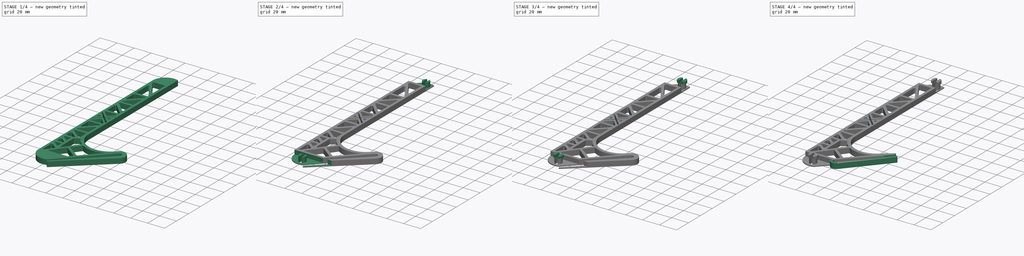
[diagram: build sequence overview — one tinted view per stage of 4, left to right]
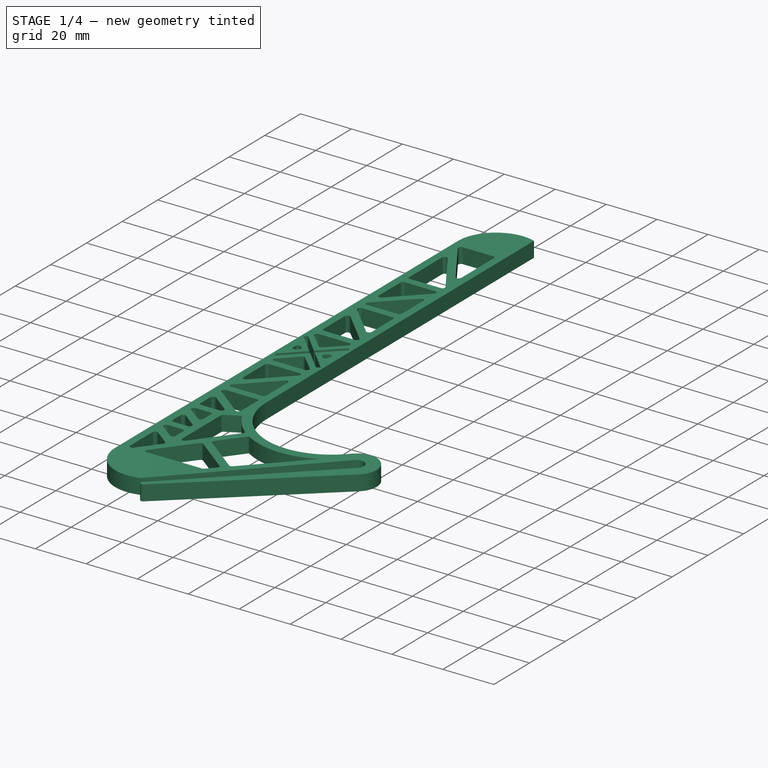
[diagram: stage 1 of 4 — iso view after this stage's code; geometry added in this stage tinted green]
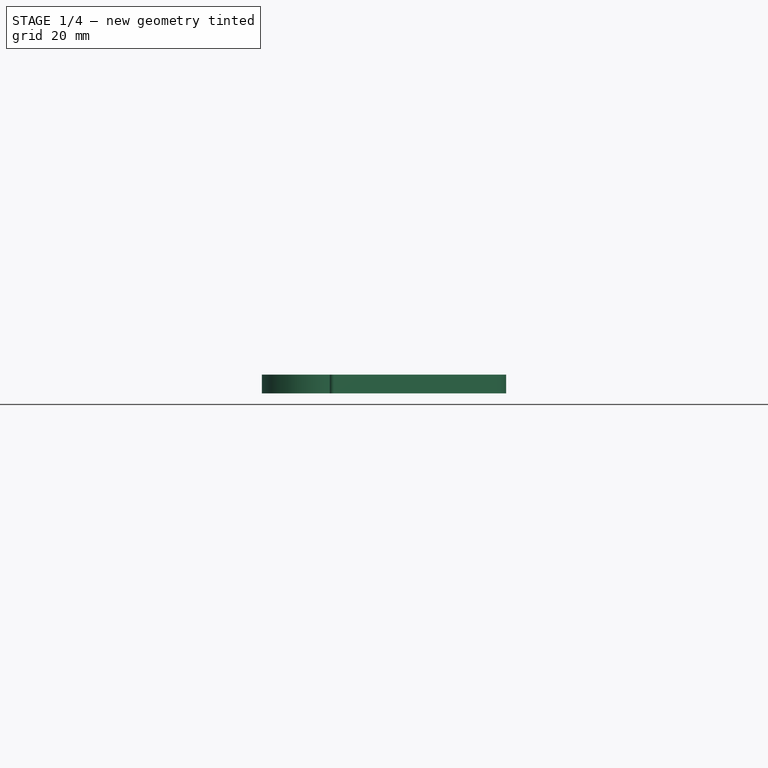
[diagram: stage 1 of 4 — front view after this stage's code; geometry added in this stage tinted green]
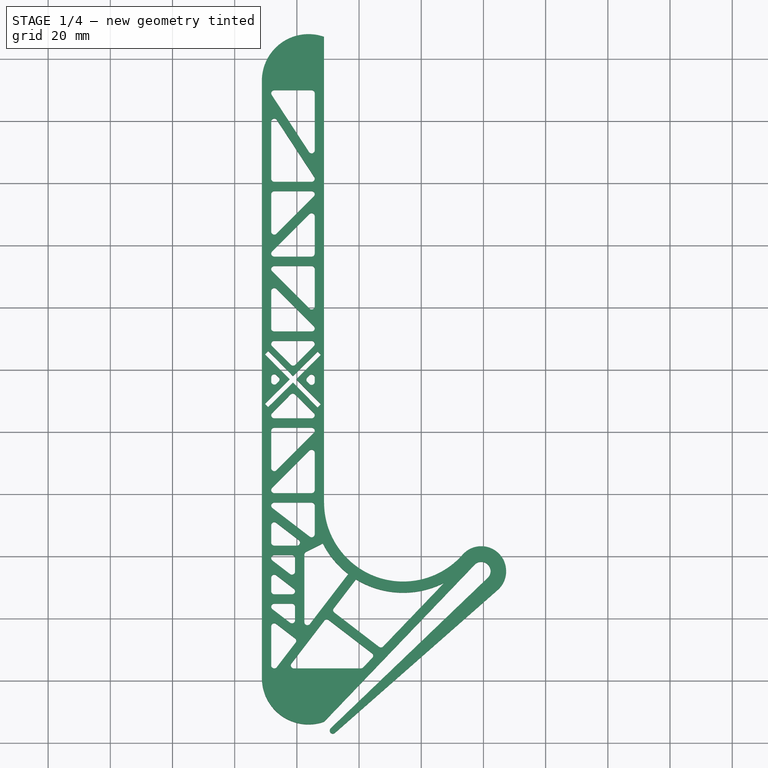
[diagram: stage 1 of 4 — top view after this stage's code; geometry added in this stage tinted green]
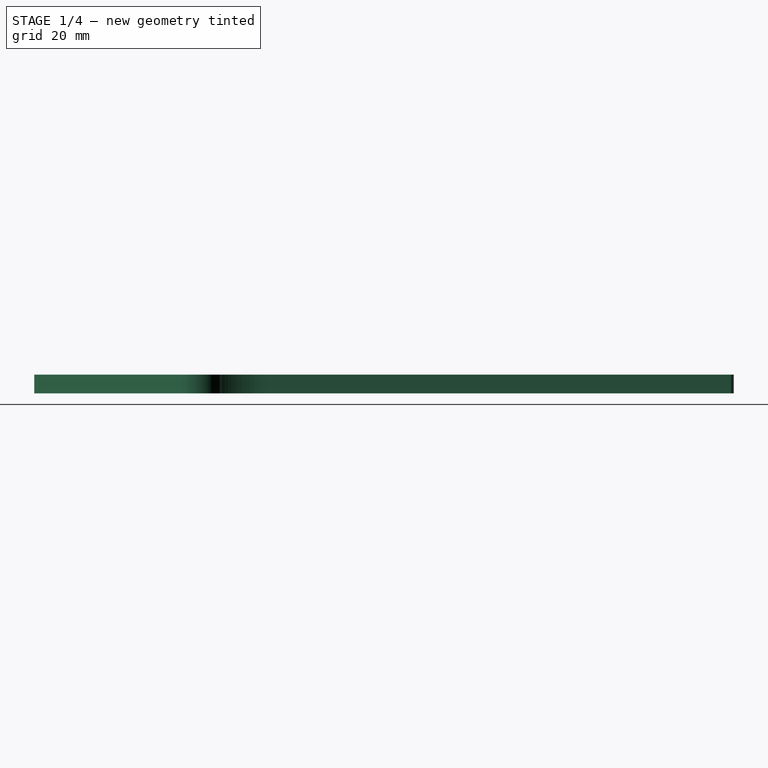
[diagram: stage 1 of 4 — right view after this stage's code; geometry added in this stage tinted green]
FCSTD DOCUMENT  (FreeCAD 0.16R6707 (Git))
Label: Montant_ar
License: All rights reserved
LicenseURL: http://en.wikipedia.org/wiki/All_rights_reserved
objects: Sketcher::SketchObject×9, PartDesign::Pocket×5, PartDesign::Pad×4, PartDesign::Fillet×4
note: 31 computed .brp shape members not serialized (recipe doc carries the construction recipe); baked Part::Feature solids carry a one-line shape summary decoded from their .brp

FEATURE [Sketcher::SketchObject] Sketch
  sketch-geometry (17):
    g0: LineSegment StartX=148.736 StartY=-99.0647 StartZ=0 EndX=148.736 EndY=92.9353 EndZ=0
    g1: LineSegment StartX=168.736 StartY=-113.207 StartZ=0 EndX=217.173 EndY=-62.6487 EndZ=0
    g2: LineSegment StartX=170.857 StartY=-115.328 StartZ=0 EndX=221.415 EndY=-66.8914 EndZ=0
    g3: LineSegment [constr] StartX=169.797 StartY=-114.268 StartZ=0 EndX=219.294 EndY=-64.77 EndZ=0
    g4: LineSegment [constr] StartX=217.173 StartY=-62.6487 StartZ=0 EndX=221.415 EndY=-66.8914 EndZ=0
    g5: ArcOfCircle CenterX=194.175 CenterY=-42.6963 CenterZ=0 NormalX=0 NormalY=0 NormalZ=1 Radius=25.4395 StartAngle=3.14159 EndAngle=5.56222
    g6: LineSegment [constr] StartX=168.736 StartY=-42.6964 StartZ=0 EndX=168.736 EndY=-113.207 EndZ=0
    g7: LineSegment StartX=172.272 StartY=-116.742 StartZ=0 EndX=224.575 EndY=-70.7794 EndZ=0
    g8: ArcOfCircle CenterX=219.294 CenterY=-64.77 CenterZ=0 NormalX=0 NormalY=0 NormalZ=1 Radius=3 StartAngle=5.49779 EndAngle=8.63938
    g9: LineSegment StartX=168.736 StartY=-42.6964 StartZ=0 EndX=168.736 EndY=107.077 EndZ=0
    g10: ArcOfCircle CenterX=163.736 CenterY=92.9353 CenterZ=0 NormalX=0 NormalY=0 NormalZ=1 Radius=15 StartAngle=1.23096 EndAngle=3.14159
    g11: LineSegment [constr] StartX=168.736 StartY=-113.207 StartZ=0 EndX=172.272 EndY=-116.742 EndZ=0
    g12: ArcOfCircle CenterX=171.564 CenterY=-116.035 CenterZ=0 NormalX=0 NormalY=0 NormalZ=1 Radius=1 StartAngle=2.35619 EndAngle=5.49779
    g13: ArcOfCircle CenterX=219.294 CenterY=-64.77 CenterZ=0 NormalX=0 NormalY=0 NormalZ=1 Radius=8 StartAngle=5.43335 EndAngle=8.70381
    g14: LineSegment [constr] StartX=148.736 StartY=92.9353 StartZ=0 EndX=168.736 EndY=92.9353 EndZ=0
    g15: LineSegment [constr] StartX=148.736 StartY=-99.0647 StartZ=0 EndX=168.736 EndY=-99.0647 EndZ=0
    g16: ArcOfCircle CenterX=163.736 CenterY=-99.0647 CenterZ=0 NormalX=0 NormalY=0 NormalZ=1 Radius=15 StartAngle=3.14159 EndAngle=5.05223
  constraints (51):
    c: Coincident(g2,g4)
    c: Coincident(g1,g4)
    c: Coincident(g1,g8)
    c: Coincident(g2,g8)
    c: Coincident(g1,g6)
    c: Coincident(g0,g10)
    c: Coincident(g9,g10)
    c: Parallel(g6,g0)
    c: Parallel(g9,g0)
    c: Parallel(g0,g-2)
    c: Symmetric(g2,g1,g3)
    c: Symmetric(g1,g2,g3)
    c: PointOnObject(g3,g4)
    c: Radius(g8) = 3
    c: Coincident(g7,g11)
    c: Coincident(g1,g11)
    c: Distance(g2,g1) = 3
    c: PointOnObject(g2,g11)
    c: Coincident(g12,g7)
    c: Coincident(g12,g2)
    c: PointOnObject(g12,g11)
    c: Radius(g12) = 1
    c: Coincident(g5,g6)
    c: Coincident(g5,g9)
    c: Coincident(g13,g3)
    c: Coincident(g13,g5)
    c: Coincident(g13,g7)
    c: Radius(g13) = 8
    c: PointOnObject(g8,g4)
    c: Angle(g10,g9) = 1.5708
    c: PointOnObject(g3,g11)
    c: Distance(g3) = 70
    c: Angle(g3,g6) = 0.785398
    c: Coincident(g0,g14)
    c: PointOnObject(g14,g9)
    c: PointOnObject(g10,g14)
    c: Angle(g14,g9) = 1.5708
    c: Distance(g14) = 20
    c: Coincident(g0,g15)
    c: Distance(g15) = 20
    c: Coincident(g16,g0)
    c: Coincident(g16,g1)
    c: PointOnObject(g16,g15)
    c: DistanceX(g16,g15) = 5
    c: DistanceX(g10,g14) = 5
    c: PointOnObject(g15,g6)
    c: Tangent(g7,g13)
    c: Tangent(g13,g5)
    c: Tangent(g5,g9)
    c: Symmetric(g5,g7,g3)
    c: DistanceY(g0,g0) = 192
FEATURE [PartDesign::Pad] Pad
  Length = 6
  Length2 = 100
  Sketch = -> Sketch
  Type = 0
FEATURE [Sketcher::SketchObject] Sketch001
  ExternalGeometry = -> [Pad]
  Placement = pos=(0,0,6) rot=(0,0,1;0rad)
  Support = -> Pad [Face13]
  sketch-geometry (160):
    g0: LineSegment StartX=152.736 StartY=-96.0647 StartZ=0 EndX=152.737 EndY=-96.0647 EndZ=0
    g1: LineSegment [constr] StartX=148.736 StartY=-99.0647 StartZ=0 EndX=192.388 EndY=-99.0647 EndZ=0
    g2: LineSegment [constr] StartX=148.736 StartY=92.9353 StartZ=0 EndX=168.736 EndY=92.9353 EndZ=0
    g3: LineSegment StartX=181.3 StartY=-95.7565 StartZ=0 EndX=184.265 EndY=-92.6611 EndZ=0
    g4: ArcOfCircle CenterX=194.175 CenterY=-42.6963 CenterZ=0 NormalX=0 NormalY=0 NormalZ=1 Radius=29 StartAngle=3.61199 EndAngle=4.05796
    g5: LineSegment StartX=158.245 StartY=-94.456 StartZ=0 EndX=168.82 EndY=-80.6733 EndZ=0
    g6: LineSegment StartX=151.736 StartY=-82.5251 StartZ=0 EndX=151.736 EndY=-95.0647 EndZ=0
    g7: LineSegment StartX=159.039 StartY=-96.0647 StartZ=0 EndX=180.577 EndY=-96.0647 EndZ=0
    g8: ArcOfCircle CenterX=194.175 CenterY=-42.6963 CenterZ=0 NormalX=0 NormalY=0 NormalZ=1 Radius=29 StartAngle=4.16159 EndAngle=5.18632
    g9: LineSegment [constr] StartX=194.175 StartY=-42.6963 StartZ=0 EndX=176.523 EndY=-65.7047 EndZ=0
    g10: LineSegment StartX=162.401 StartY=-59.4659 StartZ=0 EndX=162.401 EndY=-81.1648 EndZ=0
    g11: LineSegment StartX=159.401 StartY=-76.223 StartZ=0 EndX=159.401 EndY=-80.5695 EndZ=0
    g12: LineSegment StartX=158.401 StartY=-75.223 StartZ=0 EndX=152.736 EndY=-75.223 EndZ=0
    g13: LineSegment [constr] StartX=148.736 StartY=-42.6964 StartZ=0 EndX=168.736 EndY=-42.6964 EndZ=0
    g14: LineSegment StartX=152.127 StartY=-77.0164 StartZ=0 EndX=157.792 EndY=-81.3629 EndZ=0
    g15: LineSegment StartX=176.523 StartY=-65.7047 StartZ=0 EndX=164.195 EndY=-81.7735 EndZ=0
    g16: LineSegment StartX=153.345 StartY=-81.7317 StartZ=0 EndX=159.401 EndY=-86.3784 EndZ=0
    g17: LineSegment StartX=153.53 StartY=-95.6734 StartZ=0 EndX=159.586 EndY=-87.7805 EndZ=0
    g18: LineSegment [constr] StartX=188.341 StartY=-88.4063 StartZ=0 EndX=190.508 EndY=-90.4817 EndZ=0
    g19: LineSegment [constr] StartX=154.64 StartY=-78.9439 StartZ=0 EndX=152.813 EndY=-81.3241 EndZ=0
    g20: LineSegment StartX=157.792 StartY=-65.7144 StartZ=0 EndX=152.127 EndY=-61.3679 EndZ=0
    g21: LineSegment StartX=159.01 StartY=-70.4297 StartZ=0 EndX=153.345 EndY=-66.0832 EndZ=0
    g22: LineSegment StartX=158.401 StartY=-72.223 StartZ=0 EndX=152.736 EndY=-72.223 EndZ=0
    g23: LineSegment StartX=151.736 StartY=-71.223 StartZ=0 EndX=151.736 EndY=-66.8766 EndZ=0
    g24: LineSegment StartX=152.736 StartY=-59.5746 StartZ=0 EndX=158.401 EndY=-59.5746 EndZ=0
    g25: LineSegment StartX=159.401 StartY=-60.5746 StartZ=0 EndX=159.401 EndY=-64.921 EndZ=0
    g26: LineSegment [constr] StartX=154.723 StartY=-67.1408 StartZ=0 EndX=156.549 EndY=-64.7607 EndZ=0
    g27: LineSegment StartX=152.736 StartY=-56.5746 StartZ=0 EndX=160.004 EndY=-56.5746 EndZ=0
    g28: LineSegment StartX=151.736 StartY=-49.9984 StartZ=0 EndX=151.736 EndY=-55.5746 EndZ=0
    g29: LineSegment StartX=153.345 StartY=-49.205 StartZ=0 EndX=160.613 EndY=-54.7812 EndZ=0
    g30: LineSegment StartX=152.127 StartY=-44.4897 StartZ=0 EndX=164.127 EndY=-53.6964 EndZ=0
    g31: LineSegment StartX=165.736 StartY=-52.903 StartZ=0 EndX=165.736 EndY=-43.6964 EndZ=0
    g32: LineSegment StartX=164.736 StartY=-42.6964 StartZ=0 EndX=152.736 EndY=-42.6964 EndZ=0
    g33: LineSegment [constr] StartX=160.967 StartY=-51.2718 StartZ=0 EndX=159.141 EndY=-53.652 EndZ=0
    g34: LineSegment StartX=170.222 StartY=-80.4887 StartZ=0 EndX=184.152 EndY=-91.1759 EndZ=0
    g35: LineSegment StartX=172.048 StartY=-78.1085 StartZ=0 EndX=186.414 EndY=-89.1305 EndZ=0
    g36: LineSegment StartX=171.863 StartY=-76.7064 StartZ=0 EndX=178.998 EndY=-67.4074 EndZ=0
    g37: LineSegment StartX=168.325 StartY=-55.8404 StartZ=0 EndX=162.948 EndY=-58.5746 EndZ=0
    g38: ArcOfCircle CenterX=163.401 CenterY=-59.4659 CenterZ=0 NormalX=0 NormalY=0 NormalZ=1 Radius=1 StartAngle=2.0412 EndAngle=3.14159
    g39: LineSegment [constr] StartX=168.325 StartY=-55.8404 StartZ=0 EndX=194.175 EndY=-42.6963 EndZ=0
    g40: ArcOfCircle CenterX=158.401 CenterY=-60.5746 CenterZ=0 NormalX=0 NormalY=0 NormalZ=1 Radius=1 StartAngle=0 EndAngle=1.5708
    g41: ArcOfCircle CenterX=152.736 CenterY=-60.5746 CenterZ=0 NormalX=0 NormalY=0 NormalZ=1 Radius=1 StartAngle=1.5708 EndAngle=4.05796
    g42: ArcOfCircle CenterX=152.736 CenterY=-66.8766 CenterZ=0 NormalX=0 NormalY=0 NormalZ=1 Radius=1 StartAngle=0.916363 EndAngle=3.14159
    g43: GeomPoint [constr] X=148.736 Y=-62.6633 Z=0
    g44: ArcOfCircle CenterX=158.401 CenterY=-64.921 CenterZ=0 NormalX=0 NormalY=0 NormalZ=1 Radius=1 StartAngle=4.05796 EndAngle=6.28319
    g45: ArcOfCircle CenterX=158.401 CenterY=-71.223 CenterZ=0 NormalX=0 NormalY=0 NormalZ=1 Radius=1 StartAngle=4.71239 EndAngle=7.19955
    g46: ArcOfCircle CenterX=152.736 CenterY=-71.223 CenterZ=0 NormalX=0 NormalY=0 NormalZ=1 Radius=1 StartAngle=3.14159 EndAngle=4.71239
    g47: ArcOfCircle CenterX=152.736 CenterY=-76.223 CenterZ=0 NormalX=0 NormalY=0 NormalZ=1 Radius=1 StartAngle=1.5708 EndAngle=4.05796
    g48: ArcOfCircle CenterX=158.401 CenterY=-76.223 CenterZ=0 NormalX=0 NormalY=0 NormalZ=1 Radius=1 StartAngle=0 EndAngle=1.5708
    g49: ArcOfCircle CenterX=158.401 CenterY=-80.5695 CenterZ=0 NormalX=0 NormalY=0 NormalZ=1 Radius=1 StartAngle=4.05796 EndAngle=6.28319
    g50: ArcOfCircle CenterX=158.792 CenterY=-87.1717 CenterZ=0 NormalX=0 NormalY=0 NormalZ=1 Radius=1 StartAngle=5.62875 EndAngle=7.19955
    g51: ArcOfCircle CenterX=152.736 CenterY=-82.5251 CenterZ=0 NormalX=0 NormalY=0 NormalZ=1 Radius=1 StartAngle=0.916363 EndAngle=3.14159
    g52: ArcOfCircle CenterX=152.736 CenterY=-95.0647 CenterZ=0 NormalX=0 NormalY=0 NormalZ=1 Radius=1 StartAngle=3.14159 EndAngle=4.71239
    g53: ArcOfCircle CenterX=152.737 CenterY=-95.0647 CenterZ=0 NormalX=0 NormalY=0 NormalZ=1 Radius=1 StartAngle=4.71239 EndAngle=5.62875
    g54: LineSegment [constr] StartX=159.586 StartY=-87.7805 StartZ=0 EndX=161.966 EndY=-89.6066 EndZ=0
    g55: ArcOfCircle CenterX=163.401 CenterY=-81.1648 CenterZ=0 NormalX=0 NormalY=0 NormalZ=1 Radius=1 StartAngle=3.14159 EndAngle=5.62875
    g56: LineSegment [constr] StartX=164.195 StartY=-81.7735 StartZ=0 EndX=166.575 EndY=-83.5996 EndZ=0
    g57: ArcOfCircle CenterX=159.039 CenterY=-95.0647 CenterZ=0 NormalX=0 NormalY=0 NormalZ=1 Radius=1 StartAngle=2.48716 EndAngle=4.71239
    g58: ArcOfCircle CenterX=180.577 CenterY=-95.0647 CenterZ=0 NormalX=0 NormalY=0 NormalZ=1 Radius=1 StartAngle=4.71239 EndAngle=5.51921
    g59: ArcOfCircle CenterX=183.543 CenterY=-91.9693 CenterZ=0 NormalX=0 NormalY=0 NormalZ=1 Radius=1 StartAngle=5.51921 EndAngle=7.19955
    g60: ArcOfCircle CenterX=172.657 CenterY=-77.3151 CenterZ=0 NormalX=0 NormalY=0 NormalZ=1 Radius=1 StartAngle=2.48716 EndAngle=4.05796
    g61: ArcOfCircle CenterX=169.613 CenterY=-81.2821 CenterZ=0 NormalX=0 NormalY=0 NormalZ=1 Radius=1 StartAngle=0.916363 EndAngle=2.48716
    g62: LineSegment StartX=187.745 StartY=-89.0289 StartZ=0 EndX=207.411 EndY=-68.5 EndZ=0
    g63: ArcOfCircle CenterX=187.023 CenterY=-88.3371 CenterZ=0 NormalX=0 NormalY=0 NormalZ=1 Radius=1 StartAngle=4.05796 EndAngle=5.51926
    g64: LineSegment [constr] StartX=177.955 StartY=-82.6407 StartZ=0 EndX=176.129 EndY=-85.0209 EndZ=0
    g65: LineSegment [constr] StartX=170.972 StartY=-72.9397 StartZ=0 EndX=173.352 EndY=-74.7658 EndZ=0
    g66: ArcOfCircle CenterX=160.004 CenterY=-55.5746 CenterZ=0 NormalX=0 NormalY=0 NormalZ=1 Radius=1 StartAngle=4.71239 EndAngle=7.19955
    g67: ArcOfCircle CenterX=164.736 CenterY=-52.903 CenterZ=0 NormalX=0 NormalY=0 NormalZ=1 Radius=1 StartAngle=4.05796 EndAngle=6.28319
    g68: ArcOfCircle CenterX=164.736 CenterY=-43.6964 CenterZ=0 NormalX=0 NormalY=0 NormalZ=1 Radius=1 StartAngle=0 EndAngle=1.5708
    g69: ArcOfCircle CenterX=152.736 CenterY=-43.6964 CenterZ=0 NormalX=0 NormalY=0 NormalZ=1 Radius=1 StartAngle=1.5708 EndAngle=4.05796
    g70: ArcOfCircle CenterX=152.736 CenterY=-49.9984 CenterZ=0 NormalX=0 NormalY=0 NormalZ=1 Radius=1 StartAngle=0.916363 EndAngle=3.14159
    g71: ArcOfCircle CenterX=152.736 CenterY=-55.5746 CenterZ=0 NormalX=0 NormalY=0 NormalZ=1 Radius=1 StartAngle=3.14159 EndAngle=4.71239
    g72: LineSegment [constr] StartX=161.796 StartY=-59.16 StartZ=0 EndX=159.984 EndY=-55.5945 EndZ=0
    g73: LineSegment [constr] StartX=164.736 StartY=-52.903 StartZ=0 EndX=166.66 EndY=-56.687 EndZ=0
    g74: LineSegment StartX=152.736 StartY=-39.6964 StartZ=0 EndX=164.736 EndY=-39.6964 EndZ=0
    g75: LineSegment StartX=165.736 StartY=-26.6964 StartZ=0 EndX=165.736 EndY=-38.6964 EndZ=0
    g76: LineSegment StartX=152.029 StartY=-37.9892 StartZ=0 EndX=164.029 EndY=-25.9892 EndZ=0
    g77: LineSegment StartX=153.443 StartY=-32.3324 StartZ=0 EndX=165.443 EndY=-20.3324 EndZ=0
    g78: LineSegment StartX=151.736 StartY=-19.6253 StartZ=0 EndX=151.736 EndY=-31.6253 EndZ=0
    g79: LineSegment StartX=152.736 StartY=-18.6253 StartZ=0 EndX=164.736 EndY=-18.6253 EndZ=0
    g80: LineSegment StartX=152.736 StartY=12.308 StartZ=0 EndX=164.736 EndY=12.308 EndZ=0
    g81: LineSegment StartX=165.443 StartY=14.0152 StartZ=0 EndX=153.443 EndY=26.0152 EndZ=0
    g82: LineSegment StartX=151.736 StartY=13.308 StartZ=0 EndX=151.736 EndY=25.308 EndZ=0
    g83: LineSegment StartX=152.029 StartY=31.672 StartZ=0 EndX=164.029 EndY=19.672 EndZ=0
    g84: LineSegment StartX=165.736 StartY=20.3791 StartZ=0 EndX=165.736 EndY=32.3791 EndZ=0
    g85: LineSegment StartX=164.736 StartY=33.3791 StartZ=0 EndX=152.736 EndY=33.3791 EndZ=0
    g86: ArcOfCircle CenterX=164.736 CenterY=-38.6964 CenterZ=0 NormalX=0 NormalY=0 NormalZ=1 Radius=1 StartAngle=4.71239 EndAngle=6.28319
    g87: ArcOfCircle CenterX=152.736 CenterY=-38.6964 CenterZ=0 NormalX=0 NormalY=0 NormalZ=1 Radius=1 StartAngle=2.35619 EndAngle=4.71239
    g88: ArcOfCircle CenterX=164.736 CenterY=-26.6964 CenterZ=0 NormalX=0 NormalY=0 NormalZ=1 Radius=1 StartAngle=0 EndAngle=2.35619
    g89: ArcOfCircle CenterX=152.736 CenterY=-31.6253 CenterZ=0 NormalX=0 NormalY=0 NormalZ=1 Radius=1 StartAngle=3.14159 EndAngle=5.49779
    g90: ArcOfCircle CenterX=152.736 CenterY=-19.6253 CenterZ=0 NormalX=0 NormalY=0 NormalZ=1 Radius=1 StartAngle=1.5708 EndAngle=3.14159
    g91: ArcOfCircle CenterX=164.736 CenterY=-19.6253 CenterZ=0 NormalX=0 NormalY=0 NormalZ=1 Radius=1 StartAngle=5.49779 EndAngle=7.85398
    g92: LineSegment [constr] StartX=165.443 StartY=-20.3324 StartZ=0 EndX=167.564 EndY=-22.4537 EndZ=0
    g93: ArcOfCircle CenterX=152.736 CenterY=13.308 CenterZ=0 NormalX=0 NormalY=0 NormalZ=1 Radius=1 StartAngle=3.14159 EndAngle=4.71239
    g94: ArcOfCircle CenterX=164.736 CenterY=13.308 CenterZ=0 NormalX=0 NormalY=0 NormalZ=1 Radius=1 StartAngle=4.71239 EndAngle=7.06858
    g95: ArcOfCircle CenterX=152.736 CenterY=25.308 CenterZ=0 NormalX=0 NormalY=0 NormalZ=1 Radius=1 StartAngle=0.785398 EndAngle=3.14159
    g96: ArcOfCircle CenterX=164.736 CenterY=20.3791 CenterZ=0 NormalX=0 NormalY=0 NormalZ=1 Radius=1 StartAngle=3.92699 EndAngle=6.28319
    g97: ArcOfCircle CenterX=152.736 CenterY=32.3791 CenterZ=0 NormalX=0 NormalY=0 NormalZ=1 Radius=1 StartAngle=1.5708 EndAngle=3.92699
    g98: ArcOfCircle CenterX=164.736 CenterY=32.3791 CenterZ=0 NormalX=0 NormalY=0 NormalZ=1 Radius=1 StartAngle=0 EndAngle=1.5708
    g99: GeomPoint [constr] X=148.736 Y=-3.06468 Z=0
    g100: GeomPoint [constr] X=168.736 Y=-6.44686 Z=0
    g101: LineSegment [constr] StartX=155.564 StartY=28.1365 StartZ=0 EndX=153.443 EndY=26.0152 EndZ=0
    g102: LineSegment [constr] StartX=148.736 StartY=-3.06468 StartZ=0 EndX=168.736 EndY=-3.25256 EndZ=0
    g103: LineSegment StartX=159.389 StartY=-7.91538 StartZ=0 EndX=165.44 EndY=-13.9152 EndZ=0
    g104: LineSegment StartX=152.032 StartY=7.59792 StartZ=0 EndX=158.083 EndY=1.59814 EndZ=0
    g105: LineSegment StartX=159.497 StartY=1.60419 StartZ=0 EndX=165.446 EndY=7.60397 EndZ=0
    g106: LineSegment StartX=152.026 StartY=-13.9212 StartZ=0 EndX=157.974 EndY=-7.92143 EndZ=0
    g107: LineSegment StartX=152.736 StartY=9.30804 StartZ=0 EndX=164.736 EndY=9.30804 EndZ=0
    g108: LineSegment StartX=151.736 StartY=-2.43384 StartZ=0 EndX=151.736 EndY=-3.79511 EndZ=0
    g109: LineSegment StartX=164.736 StartY=-15.6253 StartZ=0 EndX=152.736 EndY=-15.6253 EndZ=0
    g110: LineSegment StartX=165.736 StartY=-2.52213 StartZ=0 EndX=165.736 EndY=-3.8834 EndZ=0
    g111: ArcOfCircle CenterX=158.685 CenterY=-8.6255 CenterZ=0 NormalX=0 NormalY=0 NormalZ=1 Radius=1 StartAngle=0.789678 EndAngle=2.36047
    g112: ArcOfCircle CenterX=158.787 CenterY=2.30826 CenterZ=0 NormalX=0 NormalY=0 NormalZ=1 Radius=1 StartAngle=3.93127 EndAngle=5.50207
    g113: LineSegment StartX=153.44 StartY=-1.72371 StartZ=0 EndX=154.121 EndY=-2.39852 EndZ=0
    g114: LineSegment StartX=153.446 StartY=-4.49919 StartZ=0 EndX=154.127 EndY=-3.81272 EndZ=0
    g115: LineSegment StartX=164.026 StartY=-1.81805 StartZ=0 EndX=163.345 EndY=-2.50452 EndZ=0
    g116: LineSegment StartX=163.351 StartY=-3.91872 StartZ=0 EndX=164.032 EndY=-4.59353 EndZ=0
    g117: ArcOfCircle CenterX=152.736 CenterY=8.30804 CenterZ=0 NormalX=0 NormalY=0 NormalZ=1 Radius=1 StartAngle=1.5708 EndAngle=3.93127
    g118: ArcOfCircle CenterX=164.736 CenterY=8.30804 CenterZ=0 NormalX=0 NormalY=0 NormalZ=1 Radius=1 StartAngle=5.50207 EndAngle=7.85398
    g119: ArcOfCircle CenterX=164.736 CenterY=-2.52213 CenterZ=0 NormalX=0 NormalY=0 NormalZ=1 Radius=1 StartAngle=0 EndAngle=2.36047
    g120: ArcOfCircle CenterX=164.736 CenterY=-3.8834 CenterZ=0 NormalX=0 NormalY=0 NormalZ=1 Radius=1 StartAngle=3.93127 EndAngle=6.28319
    g121: ArcOfCircle CenterX=164.055 CenterY=-3.20859 CenterZ=0 NormalX=0 NormalY=0 NormalZ=1 Radius=1 StartAngle=2.36047 EndAngle=3.93127
    g122: ArcOfCircle CenterX=153.417 CenterY=-3.10865 CenterZ=0 NormalX=0 NormalY=0 NormalZ=1 Radius=1 StartAngle=5.50207 EndAngle=7.07286
    g123: ArcOfCircle CenterX=152.736 CenterY=-2.43384 CenterZ=0 NormalX=0 NormalY=0 NormalZ=1 Radius=1 StartAngle=0.789678 EndAngle=3.14159
    g124: ArcOfCircle CenterX=152.736 CenterY=-3.79511 CenterZ=0 NormalX=0 NormalY=0 NormalZ=1 Radius=1 StartAngle=3.14159 EndAngle=5.50207
    g125: ArcOfCircle CenterX=152.736 CenterY=-14.6253 CenterZ=0 NormalX=0 NormalY=0 NormalZ=1 Radius=1 StartAngle=2.36047 EndAngle=4.71239
    g126: ArcOfCircle CenterX=164.736 CenterY=-14.6253 CenterZ=0 NormalX=0 NormalY=0 NormalZ=1 Radius=1 StartAngle=4.71239 EndAngle=7.07286
    g127: LineSegment [constr] StartX=158.787 StartY=2.30826 StartZ=0 EndX=158.685 EndY=-8.6255 EndZ=0
    g128: GeomPoint [constr] X=158.736 Y=-3.15862 Z=0
    g129: LineSegment [constr] StartX=157.974 StartY=-7.92143 StartZ=0 EndX=163.345 EndY=-2.50452 EndZ=0
    g130: LineSegment StartX=152.736 StartY=36.3791 StartZ=0 EndX=164.736 EndY=36.3791 EndZ=0
    g131: LineSegment StartX=165.736 StartY=37.3791 StartZ=0 EndX=165.736 EndY=49.3791 EndZ=0
    g132: LineSegment StartX=152.029 StartY=38.0862 StartZ=0 EndX=164.029 EndY=50.0862 EndZ=0
    g133: LineSegment StartX=153.443 StartY=43.7431 StartZ=0 EndX=165.443 EndY=55.7431 EndZ=0
    g134: LineSegment StartX=151.736 StartY=44.4502 StartZ=0 EndX=151.736 EndY=56.4502 EndZ=0
    g135: LineSegment StartX=152.736 StartY=57.4502 StartZ=0 EndX=164.736 EndY=57.4502 EndZ=0
    g136: GeomPoint [constr] X=148.736 Y=48.5693 Z=0
    g137: GeomPoint [constr] X=168.736 Y=51.3366 Z=0
    g138: ArcOfCircle CenterX=164.736 CenterY=49.3791 CenterZ=0 NormalX=0 NormalY=0 NormalZ=1 Radius=1 StartAngle=0 EndAngle=2.35619
    g139: ArcOfCircle CenterX=152.736 CenterY=37.3791 CenterZ=0 NormalX=0 NormalY=0 NormalZ=1 Radius=1 StartAngle=2.35619 EndAngle=4.71239
    g140: ArcOfCircle CenterX=164.736 CenterY=37.3791 CenterZ=0 NormalX=0 NormalY=0 NormalZ=1 Radius=1 StartAngle=4.71239 EndAngle=6.28319
    g141: ArcOfCircle CenterX=152.736 CenterY=44.4502 CenterZ=0 NormalX=0 NormalY=0 NormalZ=1 Radius=1 StartAngle=3.14159 EndAngle=5.49779
    g142: ArcOfCircle CenterX=164.736 CenterY=56.4502 CenterZ=0 NormalX=0 NormalY=0 NormalZ=1 Radius=1 StartAngle=5.49779 EndAngle=7.85398
    g143: ArcOfCircle CenterX=152.736 CenterY=56.4502 CenterZ=0 NormalX=0 NormalY=0 NormalZ=1 Radius=1 StartAngle=1.5708 EndAngle=3.14159
    g144: LineSegment [constr] StartX=159.132 StartY=49.432 StartZ=0 EndX=161.253 EndY=47.3106 EndZ=0
    g145: LineSegment StartX=152.736 StartY=60.4502 StartZ=0 EndX=164.736 EndY=60.4502 EndZ=0
    g146: LineSegment StartX=151.736 StartY=61.4502 StartZ=0 EndX=151.736 EndY=79.7999 EndZ=0
    g147: LineSegment StartX=165.573 StartY=61.9975 StartZ=0 EndX=153.573 EndY=80.3472 EndZ=0
    g148: LineSegment StartX=151.899 StartY=88.388 StartZ=0 EndX=163.899 EndY=70.0383 EndZ=0
    g149: LineSegment StartX=152.736 StartY=89.9353 StartZ=0 EndX=164.736 EndY=89.9353 EndZ=0
    g150: LineSegment StartX=165.736 StartY=88.9353 StartZ=0 EndX=165.736 EndY=70.5856 EndZ=0
    g151: ArcOfCircle CenterX=152.736 CenterY=61.4502 CenterZ=0 NormalX=0 NormalY=0 NormalZ=1 Radius=1 StartAngle=3.14159 EndAngle=4.71239
    g152: ArcOfCircle CenterX=152.736 CenterY=79.7999 CenterZ=0 NormalX=0 NormalY=0 NormalZ=1 Radius=1 StartAngle=0.579156 EndAngle=3.14159
    g153: ArcOfCircle CenterX=164.736 CenterY=61.4502 CenterZ=0 NormalX=0 NormalY=0 NormalZ=1 Radius=1 StartAngle=4.71239 EndAngle=6.86234
    g154: ArcOfCircle CenterX=164.736 CenterY=70.5856 CenterZ=0 NormalX=0 NormalY=0 NormalZ=1 Radius=1 StartAngle=3.72075 EndAngle=6.28319
    g155: ArcOfCircle CenterX=152.736 CenterY=88.9353 CenterZ=0 NormalX=0 NormalY=0 NormalZ=1 Radius=1 StartAngle=1.5708 EndAngle=3.72075
    g156: ArcOfCircle CenterX=164.736 CenterY=88.9353 CenterZ=0 NormalX=0 NormalY=0 NormalZ=1 Radius=1 StartAngle=0 EndAngle=1.5708
    g157: GeomPoint [constr] X=168.736 Y=74.3591 Z=0
    g158: GeomPoint [constr] X=148.736 Y=75.055 Z=0
    g159: LineSegment [constr] StartX=159.709 StartY=70.9639 StartZ=0 EndX=162.22 EndY=72.6059 EndZ=0
  constraints (388):
    c: Horizontal(g0)
    c: Coincident(g1,g-7)
    c: Horizontal(g1)
    c: PointOnObject(g1,g-8)
    c: Coincident(g2,g-3)
    c: Horizontal(g2)
    c: PointOnObject(g2,g-4)
    c: Parallel(g3,g-6)
    c: Coincident(g4,g-5)
    c: Vertical(g6)
    c: Tangent(g0,g7)
    c: Equal(g4,g8)
    c: Coincident(g8,g36)
    c: Coincident(g4,g8)
    c: Coincident(g9,g4)
    c: Coincident(g9,g4)
    c: Vertical(g10)
    c: Radius(g8) = 29
    c: Vertical(g11)
    c: Horizontal(g12)
    c: Horizontal(g13)
    c: PointOnObject(g13,g-3)
    c: Coincident(g13,g-5)
    c: Coincident(g15,g4)
    c: Parallel(g15,g5)
    c: Parallel(g9,g15)
    c: Parallel(g15,g17)
    c: Parallel(g16,g14)
    c: PointOnObject(g18,g-6)
    c: PointOnObject(g18,g3)
    c: Angle(g3,g18) = 1.5708
    c: Distance(g18) = 3
    c: PointOnObject(g19,g14)
    c: PointOnObject(g19,g16)
    c: Angle(g14,g19) = 1.5708
    c: Distance(g19) = 3
    c: Horizontal(g22)
    c: Vertical(g23)
    c: Parallel(g21,g20)
    c: Vertical(g25)
    c: Horizontal(g24)
    c: PointOnObject(g26,g20)
    c: PointOnObject(g26,g21)
    c: Angle(g26,g21) = 1.5708
    c: Distance(g26) = 3
    c: Parallel(g21,g14)
    c: Horizontal(g27)
    c: Vertical(g28)
    c: Vertical(g31)
    c: Horizontal(g32)
    c: Parallel(g30,g29)
    c: PointOnObject(g33,g30)
    c: PointOnObject(g33,g29)
    c: Angle(g29,g33) = 1.5708
    c: Distance(g33) = 3
    c: Parallel(g35,g34)
    c: Angle(g35,g36) = 1.5708
    c: Parallel(g30,g20)
    c: Tangent(g37,g38) = -1.5708
    c: Tangent(g10,g38) = -1.5708
    c: Radius(g38) = 1
    c: Coincident(g39,g4)
    c: Coincident(g39,g4)
    c: Parallel(g39,g37)
    c: DistanceY(g37,g66) = 3
    c: Tangent(g24,g40) = 1.5708
    c: Tangent(g25,g40) = 1.5708
    c: Radius(g40) = 1
    c: Tangent(g20,g41) = 1.5708
    c: Tangent(g24,g41) = 1.5708
    c: Radius(g41) = 1
    c: Tangent(g21,g42) = -1.5708
    c: Tangent(g23,g42) = 1.5708
    c: PointOnObject(g43,g-3)
    c: DistanceX(g43,g41) = 4
    c: DistanceX(g43,g42) = 4
    c: Radius(g42) = 1
    c: Tangent(g25,g44) = 1.5708
    c: Tangent(g20,g44) = 1.5708
    c: Radius(g44) = 1
    c: Tangent(g21,g45) = -1.5708
    c: Tangent(g22,g45) = 1.5708
    c: Tangent(g22,g46) = 1.5708
    c: Tangent(g23,g46) = 1.5708
    c: Radius(g46) = 1
    c: Radius(g45) = 1
    c: DistanceX(g45,g10) = 4
    c: DistanceX(g40,g10) = 4
    c: Parallel(g36,g15)
    c: Tangent(g12,g47) = -1.5708
    c: Tangent(g14,g47) = -1.5708
    c: DistanceX(g43,g47) = 4
    c: Radius(g47) = 1
    c: Tangent(g12,g48) = -1.5708
    c: Tangent(g11,g48) = 1.5708
    c: Radius(g48) = 1
    c: Tangent(g11,g49) = 1.5708
    c: Tangent(g14,g49) = -1.5708
    c: DistanceY(g12,g22) = 3
    c: Radius(g49) = 1
    c: Angle(g16,g17) = 1.5708
    c: Tangent(g16,g50) = 1.5708
    c: Tangent(g17,g50) = -1.5708
    c: Tangent(g16,g51) = 1.5708
    c: Tangent(g6,g51) = -1.5708
    c: Tangent(g6,g52) = -1.5708
    c: Tangent(g0,g52) = -1.5708
    c: Tangent(g17,g53) = -1.5708
    c: Tangent(g0,g53) = -1.5708
    c: Radius(g53) = 1
    c: DistanceY(g1,g0) = 3
    c: DistanceX(g1,g6) = 3
    c: Radius(g51) = 1
    c: Radius(g52) = 1
    c: Radius(g50) = 1
    c: PointOnObject(g54,g5)
    c: Coincident(g54,g17)
    c: Angle(g5,g54) = 1.5708
    c: Distance(g54) = 3
    c: Tangent(g15,g55) = 1.5708
    c: Tangent(g10,g55) = -1.5708
    c: Radius(g55) = 1
    c: PointOnObject(g56,g5)
    c: Coincident(g15,g56)
    c: Angle(g56,g5) = 1.5708
    c: Distance(g56) = 3
    c: DistanceX(g16,g10) = 3
    c: DistanceX(g11,g10) = 3
    c: Tangent(g5,g57) = 1.5708
    c: Tangent(g7,g57) = -1.5708
    c: Radius(g57) = 1
    c: Tangent(g3,g58) = -1.5708
    c: Tangent(g7,g58) = -1.5708
    c: Tangent(g34,g59) = 1.5708
    c: Tangent(g3,g59) = -1.5708
    c: Tangent(g36,g60) = 1.5708
    c: Tangent(g35,g60) = -1.5708
    c: Tangent(g34,g61) = 1.5708
    c: Tangent(g5,g61) = 1.5708
    c: Coincident(g62,g8)
    c: PointOnObject(g18,g62)
    c: Tangent(g62,g63) = -1.5708
    c: Tangent(g35,g63) = -1.5708
    c: Radius(g63) = 1
    c: Radius(g60) = 1
    c: PointOnObject(g64,g35)
    c: PointOnObject(g64,g34)
    c: Angle(g34,g64) = 1.5708
    c: Distance(g64) = 3
    c: PointOnObject(g65,g36)
    c: PointOnObject(g65,g15)
    c: Distance(g65) = 3
    c: Angle(g36,g65) = 1.5708
    c: Radius(g58) = 1
    c: Tangent(g29,g66) = 1.5708
    c: Tangent(g27,g66) = -1.5708
    c: Tangent(g30,g67) = -1.5708
    c: Tangent(g31,g67) = -1.5708
    c: Tangent(g32,g68) = -1.5708
    c: Tangent(g31,g68) = -1.5708
    c: Tangent(g32,g69) = -1.5708
    c: Tangent(g30,g69) = -1.5708
    c: Tangent(g29,g70) = 1.5708
    c: Tangent(g28,g70) = -1.5708
    c: Tangent(g27,g71) = -1.5708
    c: Tangent(g28,g71) = -1.5708
    c: Radius(g66) = 1
    c: Equal(g66,g67)
    c: Equal(g66,g71)
    c: Equal(g66,g69)
    c: Equal(g66,g68)
    c: Equal(g66,g70)
    c: DistanceY(g24,g27) = 3
    c: DistanceX(g13,g28) = 3
    c: DistanceX(g13,g69) = 4
    c: DistanceX(g31,g13) = 3
    c: Radius(g61) = 1
    c: Radius(g59) = 1
    c: PointOnObject(g72,g37)
    c: Angle(g37,g72) = 1.5708
    c: Distance(g72) = 4
    c: PointOnObject(g73,g37)
    c: Coincident(g73,g67)
    c: Angle(g73,g37) = 1.5708
    c: PointOnObject(g32,g13)
    c: Coincident(g37,g4)
    c: Horizontal(g74)
    c: Vertical(g75)
    c: Horizontal(g79)
    c: Horizontal(g80)
    c: Vertical(g82)
    c: Vertical(g84)
    c: Horizontal(g85)
    c: Vertical(g78)
    c: Parallel(g83,g81)
    c: Parallel(g76,g77)
    c: Tangent(g75,g86) = 1.5708
    c: Tangent(g74,g86) = -1.5708
    c: Tangent(g76,g87) = 1.5708
    c: Tangent(g74,g87) = -1.5708
    c: Tangent(g76,g88) = 1.5708
    c: Tangent(g75,g88) = 1.5708
    c: Tangent(g77,g89) = -1.5708
    c: Tangent(g78,g89) = -1.5708
    c: Tangent(g79,g90) = 1.5708
    c: Tangent(g78,g90) = -1.5708
    c: Tangent(g77,g91) = -1.5708
    c: Tangent(g79,g91) = 1.5708
    c: Radius(g89) = 1
    c: Equal(g89,g87)
    c: Equal(g89,g86)
    c: Equal(g89,g88)
    c: Equal(g89,g91)
    c: Equal(g89,g90)
    c: DistanceY(g13,g74) = 3
    c: DistanceX(g13,g87) = 4
    c: DistanceX(g75,g13) = 3
    c: DistanceX(g13,g78) = 3
    c: Coincident(g92,g77)
    c: PointOnObject(g92,g76)
    c: Angle(g92,g76) = 1.5708
    c: Distance(g92) = 3
    c: DistanceX(g91,g13) = 4
    c: Tangent(g80,g93) = -1.5708
    c: Tangent(g82,g93) = 1.5708
    c: Tangent(g81,g94) = -1.5708
    c: Tangent(g80,g94) = -1.5708
    c: Tangent(g81,g95) = -1.5708
    c: Tangent(g82,g95) = 1.5708
    c: Tangent(g83,g96) = -1.5708
    c: Tangent(g84,g96) = -1.5708
    c: Tangent(g83,g97) = -1.5708
    c: Tangent(g85,g97) = -1.5708
    c: Tangent(g85,g98) = -1.5708
    c: Tangent(g84,g98) = -1.5708
    c: Radius(g93) = 1
    c: Equal(g93, g94-g98) x5
    c: PointOnObject(g99,g-3)
    c: DistanceX(g99,g82) = 3
    c: PointOnObject(g100,g-4)
    c: DistanceX(g84,g100) = 3
    c: Coincident(g101,g81)
    c: PointOnObject(g101,g83)
    c: Angle(g81,g101) = 1.5708
    c: Distance(g101) = 3
    c: DistanceX(g94,g100) = 4
    c: Angle(g74,g76) = 0.785398
    c: Angle(g81,g80) = 0.785398
    c: DistanceX(g99,g97) = 4
    c: DistanceY(g99,g2) = 96
    c: Coincident(g102,g99)
    c: PointOnObject(g102,g-4)
    c: Vertical(g108)
    c: Vertical(g110)
    c: Horizontal(g109)
    c: Tangent(g106,g111) = 1.5708
    c: Tangent(g103,g111) = 1.5708
    c: Tangent(g104,g112) = -1.5708
    c: Tangent(g105,g112) = -1.5708
    c: Tangent(g107,g117) = 1.5708
    c: Tangent(g104,g117) = -1.5708
    c: Tangent(g105,g118) = -1.5708
    c: Tangent(g107,g118) = 1.5708
    c: Tangent(g115,g119) = -1.5708
    c: Tangent(g110,g119) = 1.5708
    c: Tangent(g116,g120) = -1.5708
    c: Tangent(g110,g120) = 1.5708
    c: Tangent(g116,g121) = -1.5708
    c: Tangent(g115,g121) = -1.5708
    c: Tangent(g113,g122) = 1.5708
    c: Tangent(g114,g122) = -1.5708
    c: Tangent(g113,g123) = 1.5708
    c: Tangent(g108,g123) = -1.5708
    c: Tangent(g108,g124) = -1.5708
    c: Tangent(g114,g124) = -1.5708
    c: Tangent(g106,g125) = 1.5708
    c: Tangent(g109,g125) = 1.5708
    c: Tangent(g103,g126) = 1.5708
    c: Tangent(g109,g126) = 1.5708
    c: Radius(g111) = 1
    c: Equal(g111,g125)
    c: Equal(g111,g126)
    c: Equal(g111,g120)
    c: Equal(g111,g121)
    c: Equal(g111,g119)
    c: Equal(g111,g112)
    c: Equal(g111,g118)
    c: Equal(g111,g117)
    c: Equal(g111,g123)
    c: Equal(g111,g122)
    c: Equal(g111,g124)
    c: DistanceX(g99,g125) = 4
    c: DistanceX(g126,g102) = 4
    c: DistanceY(g79,g109) = 3
    c: Symmetric(g102,g99,g127)
    c: Coincident(g111,g127)
    c: PointOnObject(g122,g102)
    c: PointOnObject(g121,g102)
    c: DistanceX(g120,g102) = 4
    c: DistanceX(g99,g124) = 4
    c: Parallel(g116,g103)
    c: Parallel(g114,g106)
    c: Coincident(g127,g112)
    c: DistanceX(g99,g117) = 4
    c: DistanceX(g118,g102) = 4
    c: Horizontal(g107)
    c: Parallel(g115,g105)
    c: Parallel(g113,g104)
    c: Angle(g113,g114) = 1.5708
    c: DistanceY(g107,g80) = 3
    c: PointOnObject(g128,g102)
    c: PointOnObject(g128,g127)
    c: Coincident(g129,g106)
    c: Coincident(g129,g115)
    c: Parallel(g115,g129)
    c: Parallel(g129,g106)
    c: Symmetric(g111,g112,g102)
    c: Symmetric(g122,g121,g127)
    c: Horizontal(g130)
    c: Vertical(g131)
    c: Vertical(g134)
    c: Horizontal(g135)
    c: PointOnObject(g136,g-3)
    c: PointOnObject(g137,g-4)
    c: Tangent(g131,g138) = -1.5708
    c: Tangent(g132,g138) = 1.5708
    c: Tangent(g132,g139) = 1.5708
    c: Tangent(g130,g139) = -1.5708
    c: Tangent(g131,g140) = -1.5708
    c: Tangent(g130,g140) = -1.5708
    c: Tangent(g133,g141) = -1.5708
    c: Tangent(g134,g141) = 1.5708
    c: Tangent(g133,g142) = -1.5708
    c: Tangent(g135,g142) = 1.5708
    c: Tangent(g135,g143) = 1.5708
    c: Tangent(g134,g143) = 1.5708
    c: DistanceY(g85,g130) = 3
    c: DistanceX(g136,g139) = 4
    c: DistanceX(g131,g137) = 3
    c: DistanceX(g136,g134) = 3
    c: DistanceX(g142,g137) = 4
    c: Radius(g142) = 1
    c: Equal(g142,g143)
    c: Equal(g142,g141)
    c: Equal(g142,g139)
    c: Equal(g142,g138)
    c: Equal(g142,g140)
    c: Parallel(g132,g133)
    c: PointOnObject(g144,g133)
    c: PointOnObject(g144,g132)
    c: Angle(g144,g132) = 1.5708
    c: Distance(g144) = 3
    c: Horizontal(g145)
    c: Vertical(g146)
    c: Horizontal(g149)
    c: Vertical(g150)
    c: Tangent(g145,g151) = -1.5708
    c: Tangent(g146,g151) = 1.5708
    c: Tangent(g146,g152) = 1.5708
    c: Tangent(g147,g152) = -1.5708
    c: Tangent(g147,g153) = -1.5708
    c: Tangent(g145,g153) = -1.5708
    c: Tangent(g148,g154) = -1.5708
    c: Tangent(g150,g154) = 1.5708
    c: Tangent(g148,g155) = -1.5708
    c: Tangent(g149,g155) = 1.5708
    c: Tangent(g150,g156) = 1.5708
    c: Tangent(g149,g156) = 1.5708
    c: PointOnObject(g157,g-4)
    c: PointOnObject(g158,g-3)
    c: DistanceY(g135,g145) = 3
    c: DistanceX(g158,g146) = 3
    c: DistanceX(g153,g157) = 4
    c: DistanceX(g150,g157) = 3
    c: DistanceX(g158,g155) = 4
    c: Radius(g156) = 1
    c: Equal(g156,g154)
    c: Equal(g156,g152)
    c: Equal(g156,g155)
    c: Equal(g156,g153)
    c: Equal(g156,g151)
    c: Parallel(g148,g147)
    c: PointOnObject(g159,g148)
    c: PointOnObject(g159,g147)
    c: Angle(g147,g159) = 1.5708
    c: Distance(g159) = 3
    c: DistanceY(g149,g2) = 3
    c: Angle(g130,g132) = 0.785398
FEATURE [PartDesign::Pocket] Pocket
  Length = 5
  Sketch = -> Sketch001
  Type = 1
FEATURE [Sketcher::SketchObject] Sketch002
  ExternalGeometry = -> [Pocket]
  Placement = pos=(0,0,6) rot=(0,0,1;0rad)
  Support = -> Pocket [Face5]
  sketch-geometry (19):
    g0: GeomPoint [constr] X=148.736 Y=-3.06468 Z=0
    g1: LineSegment StartX=149.736 StartY=-10.946 StartZ=0 EndX=157.682 EndY=-3.06468 EndZ=0
    g2: LineSegment StartX=149.736 StartY=4.96631 StartZ=0 EndX=157.682 EndY=-3.06468 EndZ=0
    g3: LineSegment StartX=150.801 StartY=6.02264 StartZ=0 EndX=158.747 EndY=-2.00835 EndZ=0
    g4: LineSegment StartX=150.781 StartY=-12.0023 StartZ=0 EndX=158.727 EndY=-4.12101 EndZ=0
    g5: LineSegment StartX=149.736 StartY=-10.946 StartZ=0 EndX=150.781 EndY=-12.0023 EndZ=0
    g6: LineSegment StartX=166.681 StartY=5.86145 StartZ=0 EndX=167.736 EndY=4.79515 EndZ=0
    g7: LineSegment StartX=149.736 StartY=4.96631 StartZ=0 EndX=150.801 EndY=6.02264 EndZ=0
    g8: LineSegment StartX=166.671 StartY=-12.1502 StartZ=0 EndX=167.736 EndY=-11.0939 EndZ=0
    g9: LineSegment [constr] StartX=148.736 StartY=-3.06468 StartZ=0 EndX=168.736 EndY=-3.06468 EndZ=0
    g10: GeomPoint [constr] X=157.682 Y=-3.06468 Z=0
    g11: GeomPoint [constr] X=159.792 Y=-3.06468 Z=0
    g12: LineSegment [constr] StartX=158.787 StartY=2.30826 StartZ=0 EndX=158.685 EndY=-8.6255 EndZ=0
    g13: GeomPoint [constr] X=158.747 Y=-2.00835 Z=0
    g14: GeomPoint [constr] X=158.727 Y=-4.12101 Z=0
    g15: LineSegment StartX=159.792 StartY=-3.06468 StartZ=0 EndX=167.736 EndY=-11.0939 EndZ=0
    g16: LineSegment StartX=158.747 StartY=-2.00835 StartZ=0 EndX=166.681 EndY=5.86145 EndZ=0
    g17: LineSegment StartX=158.727 StartY=-4.12101 StartZ=0 EndX=166.671 EndY=-12.1502 EndZ=0
    g18: LineSegment StartX=159.792 StartY=-3.06468 StartZ=0 EndX=167.736 EndY=4.79515 EndZ=0
  constraints (52):
    c: PointOnObject(g0,g-3)
    c: DistanceY(g0,g-3) = 96
    c: Coincident(g15,g8)
    c: Coincident(g17,g8)
    c: Coincident(g5,g1)
    c: Coincident(g4,g5)
    c: Coincident(g3,g7)
    c: Coincident(g2,g7)
    c: Coincident(g16,g6)
    c: Coincident(g6,g18)
    c: PointOnObject(g9,g-4)
    c: Horizontal(g9)
    c: Coincident(g0,g9)
    c: PointOnObject(g10,g1)
    c: PointOnObject(g10,g2)
    c: PointOnObject(g10,g9)
    c: PointOnObject(g11,g4)
    c: PointOnObject(g11,g3)
    c: PointOnObject(g11,g9)
    c: Parallel(g3,g2)
    c: Parallel(g4,g1)
    c: Parallel(g8,g4)
    c: Parallel(g5,g2)
    c: Parallel(g7,g1)
    c: Parallel(g6,g3)
    c: Angle(g15,g18) = 1.5708
    c: Distance(g18,g16) = 1.5
    c: Distance(g2,g3) = 1.5
    c: DistanceX(g0,g2) = 1
    c: DistanceX(g18,g9) = 1
    c: DistanceX(g15,g9) = 1
    c: DistanceX(g0,g1) = 1
    c: Coincident(g12,g-5)
    c: Coincident(g12,g-6)
    c: PointOnObject(g14,g12)
    c: PointOnObject(g13,g12)
    c: PointOnObject(g13,g1)
    c: PointOnObject(g13,g3)
    c: PointOnObject(g14,g2)
    c: PointOnObject(g3,g12)
    c: PointOnObject(g15,g9)
    c: Tangent(g3,g15)
    c: PointOnObject(g1,g2)
    c: PointOnObject(g16,g12)
    c: Tangent(g1,g16)
    c: PointOnObject(g2,g9)
    c: PointOnObject(g17,g12)
    c: Tangent(g2,g17)
    c: PointOnObject(g4,g17)
    c: PointOnObject(g18,g9)
    c: Coincident(g4,g14)
    c: Coincident(g18,g11)
FEATURE [PartDesign::Pocket] Pocket001
  Length = 5
  Sketch = -> Sketch002
  Type = 1
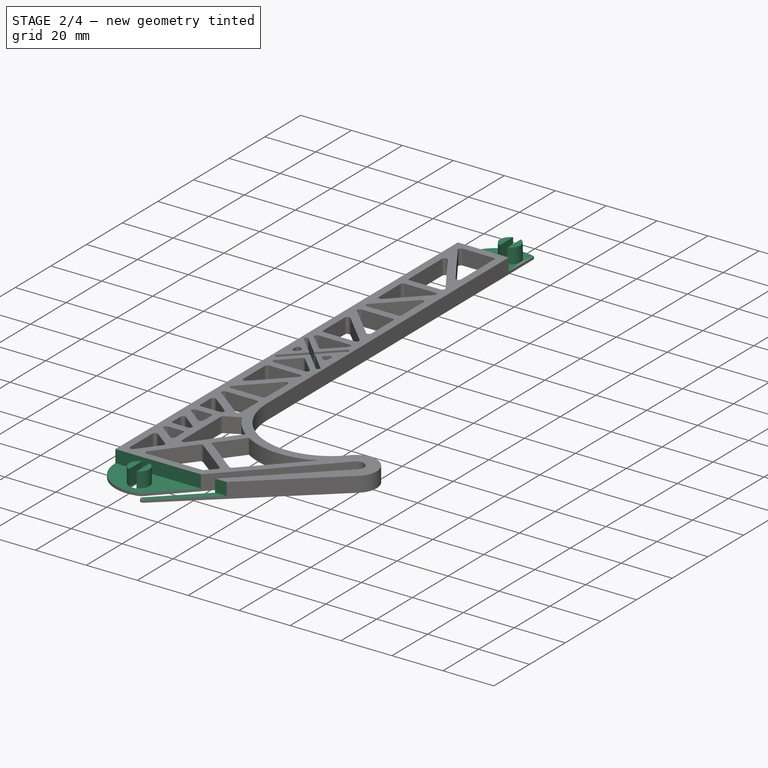
[diagram: stage 2 of 4 — iso view after this stage's code; geometry added in this stage tinted green]
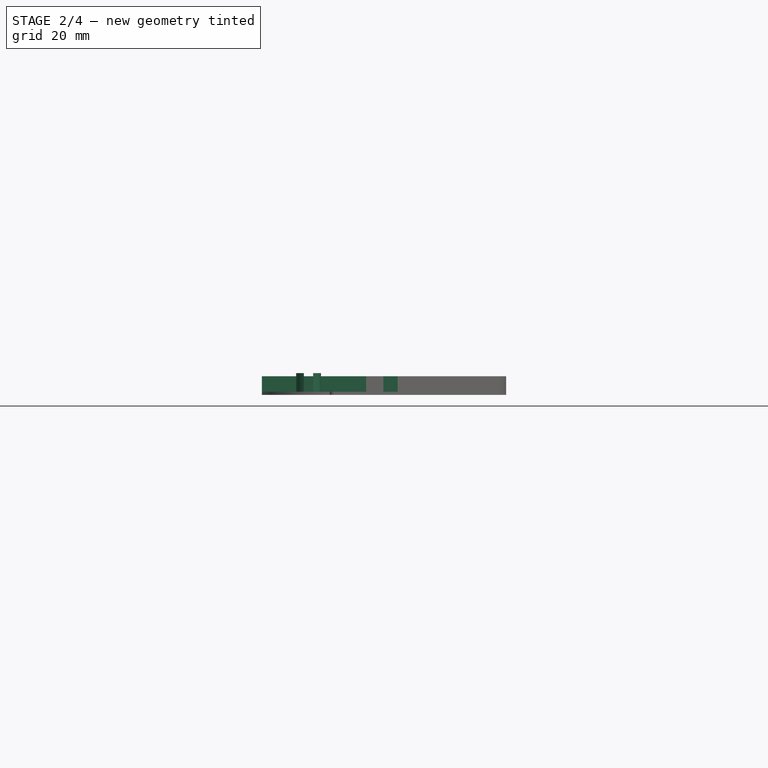
[diagram: stage 2 of 4 — front view after this stage's code; geometry added in this stage tinted green]
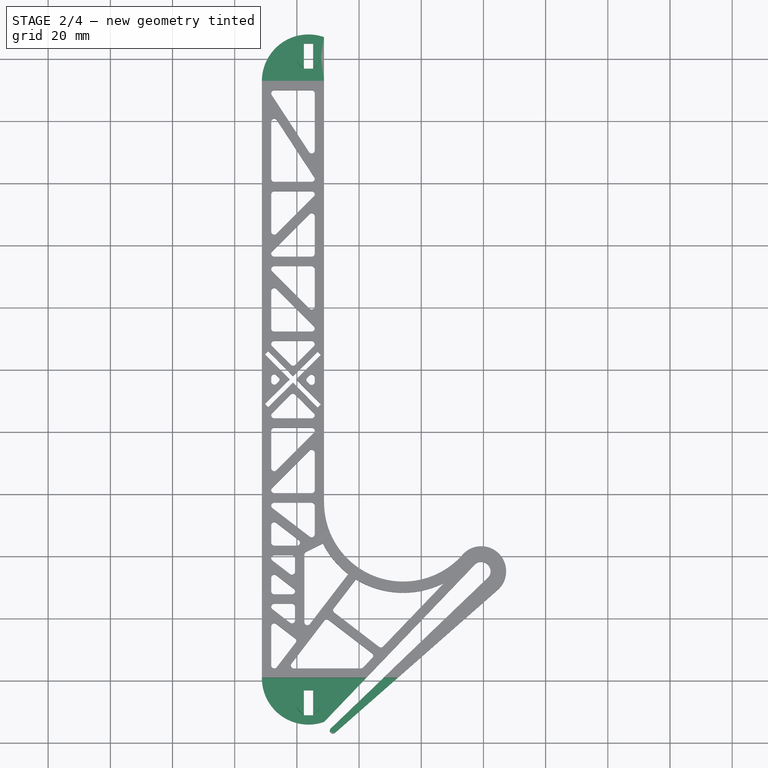
[diagram: stage 2 of 4 — top view after this stage's code; geometry added in this stage tinted green]
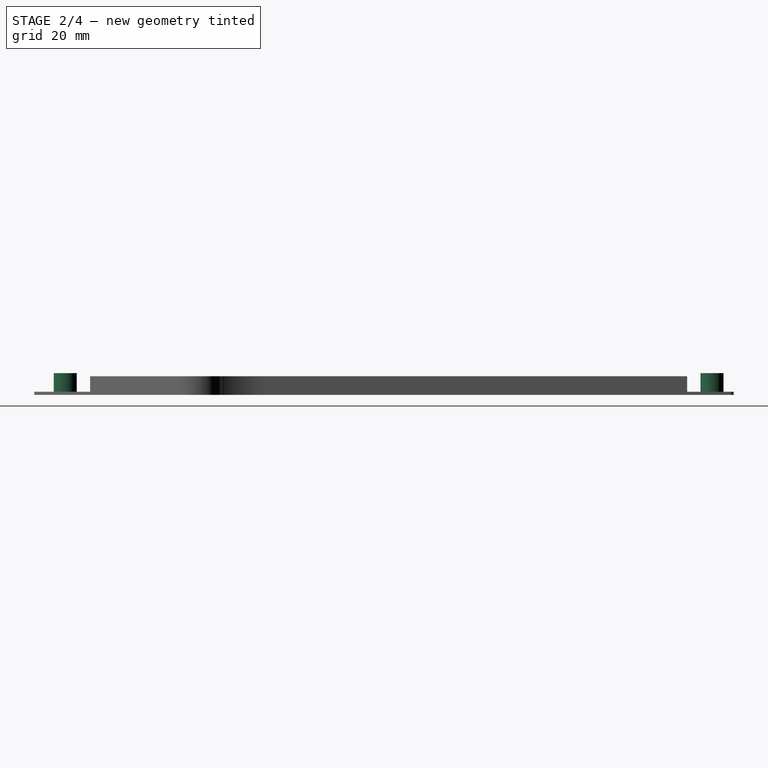
[diagram: stage 2 of 4 — right view after this stage's code; geometry added in this stage tinted green]
FEATURE [Sketcher::SketchObject] Sketch003
  ExternalGeometry = -> [Pocket001]
  Placement = pos=(0,0,6) rot=(0,0,1;0rad)
  Support = -> Pocket001 [Face5]
  sketch-geometry (8):
    g0: LineSegment StartX=148.736 StartY=92.9353 StartZ=0 EndX=168.736 EndY=92.9353 EndZ=0
    g1: LineSegment StartX=148.736 StartY=92.9353 StartZ=0 EndX=148.736 EndY=107.935 EndZ=0
    g2: LineSegment StartX=148.736 StartY=107.935 StartZ=0 EndX=168.736 EndY=107.935 EndZ=0
    g3: LineSegment StartX=148.736 StartY=-99.0647 StartZ=0 EndX=192.388 EndY=-99.0647 EndZ=0
    g4: LineSegment StartX=148.736 StartY=-99.0647 StartZ=0 EndX=148.736 EndY=-117.035 EndZ=0
    g5: LineSegment StartX=148.736 StartY=-117.035 StartZ=0 EndX=192.388 EndY=-117.035 EndZ=0
    g6: LineSegment StartX=192.388 StartY=-117.035 StartZ=0 EndX=192.388 EndY=-99.0647 EndZ=0
    g7: LineSegment StartX=168.736 StartY=107.935 StartZ=0 EndX=168.736 EndY=92.9353 EndZ=0
  constraints (23):
    c: Horizontal(g0)
    c: PointOnObject(g0,g-4)
    c: Coincident(g0,g-3)
    c: PointOnObject(g2,g1)
    c: Horizontal(g2)
    c: Vertical(g1)
    c: Coincident(g1,g0)
    c: Coincident(g2,g1)
    c: Tangent(g2,g-3)
    c: Horizontal(g3)
    c: Vertical(g4)
    c: Horizontal(g5)
    c: Vertical(g6)
    c: Coincident(g3,g6)
    c: Coincident(g5,g6)
    c: Coincident(g5,g4)
    c: Coincident(g4,g3)
    c: Coincident(g-6,g3)
    c: PointOnObject(g3,g-7)
    c: Tangent(g5,g-8)
    c: Coincident(g7,g2)
    c: Coincident(g7,g0)
    c: Vertical(g7)
FEATURE [PartDesign::Pocket] Pocket002
  Length = 5
  Sketch = -> Sketch003
  Type = 0
FEATURE [Sketcher::SketchObject] Sketch004
  ExternalGeometry = -> [Pocket002]
  Placement = pos=(0,0,1) rot=(0,0,1;0rad)
  Support = -> Pocket002 [Face9]
  sketch-geometry (4):
    g0: Circle CenterX=163.736 CenterY=-107.065 CenterZ=0 NormalX=0 NormalY=0 NormalZ=1 Radius=4
    g1: LineSegment [constr] StartX=163.736 StartY=-99.0647 StartZ=0 EndX=163.736 EndY=-107.065 EndZ=0
    g2: Circle CenterX=163.736 CenterY=100.935 CenterZ=0 NormalX=0 NormalY=0 NormalZ=1 Radius=4
    g3: LineSegment [constr] StartX=163.736 StartY=100.935 StartZ=0 EndX=163.736 EndY=92.9353 EndZ=0
  constraints (10):
    c: Radius(g0) = 4
    c: DistanceY(g0,g-3) = 8
    c: Vertical(g1)
    c: Coincident(g1,g-4)
    c: Coincident(g1,g0)
    c: Radius(g2) = 4
    c: Vertical(g3)
    c: Coincident(g3,g2)
    c: Coincident(g3,g-5)
    c: Distance(g3) = 8
FEATURE [PartDesign::Pad] Pad001
  Length = 6
  Length2 = 100
  Sketch = -> Sketch004
  Type = 0
FEATURE [Sketcher::SketchObject] Sketch005
  ExternalGeometry = -> [Pad001]
  Placement = pos=(0,0,7) rot=(0,0,1;0rad)
  Support = -> Pad001 [Face164]
  sketch-geometry (10):
    g0: LineSegment StartX=162.236 StartY=-103.065 StartZ=0 EndX=165.236 EndY=-103.065 EndZ=0
    g1: LineSegment StartX=165.236 StartY=-103.065 StartZ=0 EndX=165.236 EndY=-111.065 EndZ=0
    g2: LineSegment StartX=165.236 StartY=-111.065 StartZ=0 EndX=162.236 EndY=-111.065 EndZ=0
    g3: LineSegment StartX=162.236 StartY=-111.065 StartZ=0 EndX=162.236 EndY=-103.065 EndZ=0
    g4: LineSegment [constr] StartX=163.736 StartY=-103.065 StartZ=0 EndX=163.736 EndY=-111.065 EndZ=0
    g5: LineSegment StartX=162.236 StartY=104.935 StartZ=0 EndX=165.236 EndY=104.935 EndZ=0
    g6: LineSegment StartX=165.236 StartY=104.935 StartZ=0 EndX=165.236 EndY=96.9353 EndZ=0
    g7: LineSegment StartX=165.236 StartY=96.9353 StartZ=0 EndX=162.236 EndY=96.9353 EndZ=0
    g8: LineSegment StartX=162.236 StartY=96.9353 StartZ=0 EndX=162.236 EndY=104.935 EndZ=0
    g9: LineSegment [constr] StartX=163.736 StartY=104.935 StartZ=0 EndX=163.736 EndY=96.9353 EndZ=0
  constraints (32):
    c: Coincident(g0,g1)
    c: Coincident(g1,g2)
    c: Coincident(g2,g3)
    c: Coincident(g3,g0)
    c: Horizontal(g0)
    c: Horizontal(g2)
    c: Vertical(g1)
    c: Vertical(g3)
    c: Vertical(g4)
    c: PointOnObject(g-3,g4)
    c: PointOnObject(g4,g0)
    c: PointOnObject(g4,g2)
    c: Symmetric(g0,g0,g4)
    c: DistanceX(g4,g0) = 1.5
    c: Tangent(g0,g-3)
    c: Tangent(g2,g-3)
    c: Coincident(g5,g6)
    c: Coincident(g6,g7)
    c: Coincident(g7,g8)
    c: Coincident(g8,g5)
    c: Horizontal(g5)
    c: Horizontal(g7)
    c: Vertical(g6)
    c: Vertical(g8)
    c: PointOnObject(g9,g7)
    c: Vertical(g9)
    c: PointOnObject(g-4,g9)
    c: PointOnObject(g9,g5)
    c: Symmetric(g5,g5,g9)
    c: Tangent(g7,g-4)
    c: Tangent(g5,g-4)
    c: DistanceX(g7,g7) = 3
FEATURE [PartDesign::Pocket] Pocket003
  Length = 5
  Sketch = -> Sketch005
  Type = 1
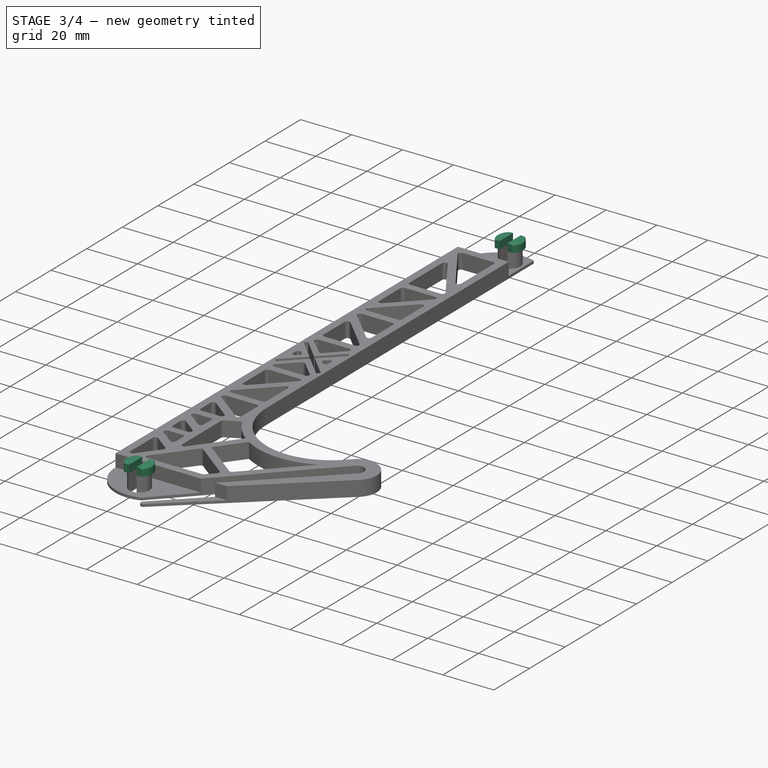
[diagram: stage 3 of 4 — iso view after this stage's code; geometry added in this stage tinted green]
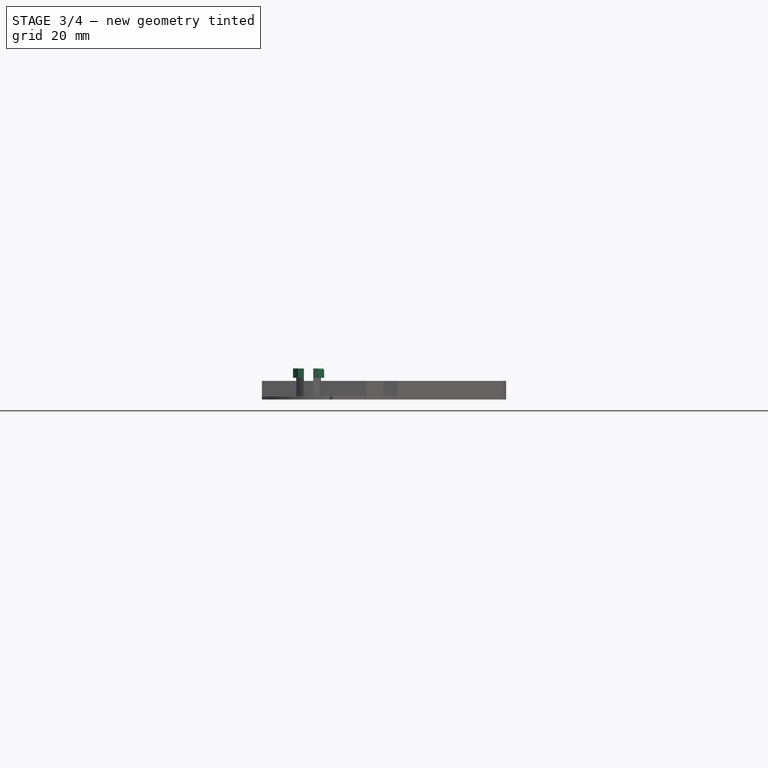
[diagram: stage 3 of 4 — front view after this stage's code; geometry added in this stage tinted green]
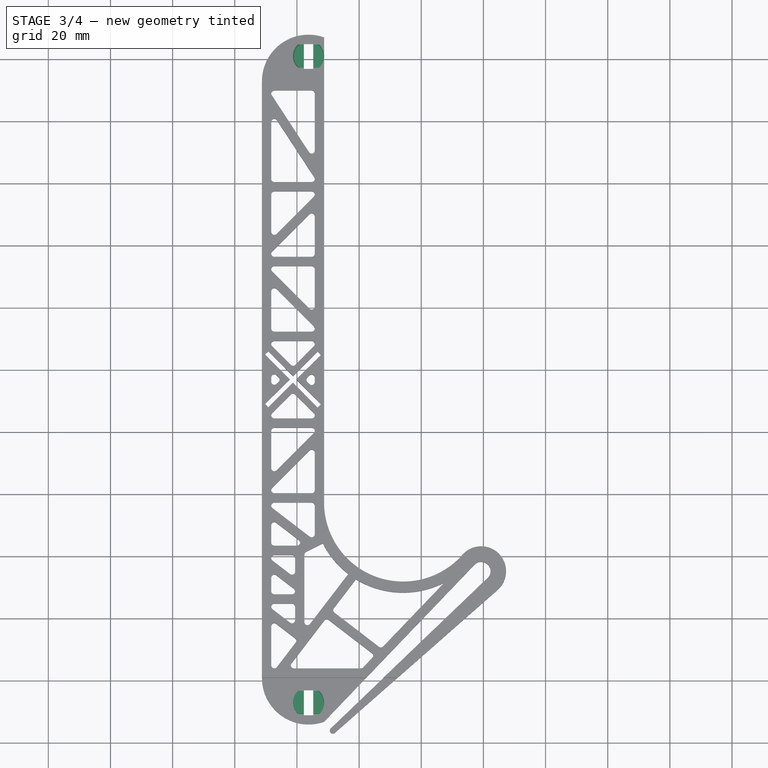
[diagram: stage 3 of 4 — top view after this stage's code; geometry added in this stage tinted green]
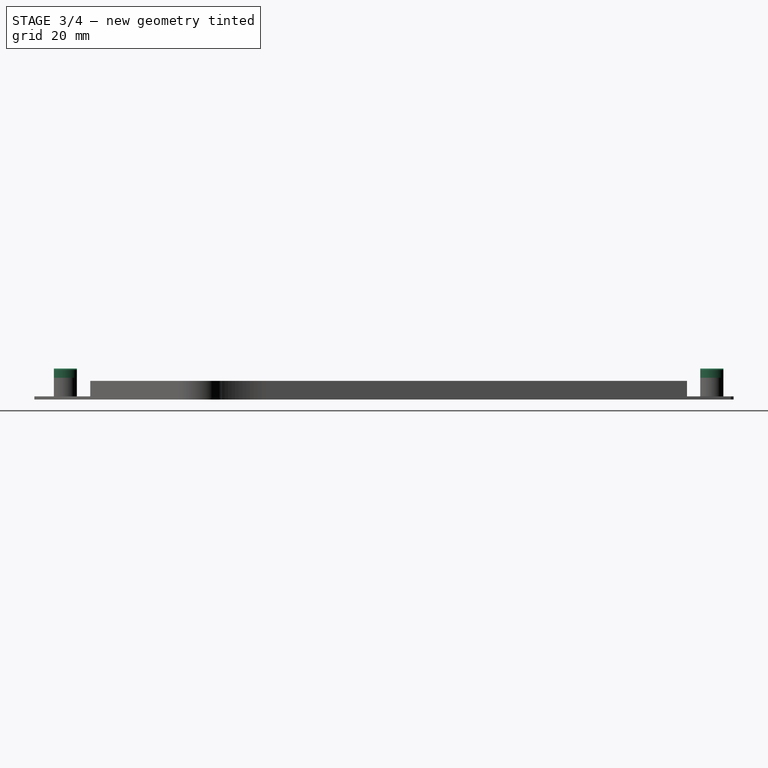
[diagram: stage 3 of 4 — right view after this stage's code; geometry added in this stage tinted green]
FEATURE [Sketcher::SketchObject] Sketch006
  ExternalGeometry = -> [Pocket003]
  Placement = pos=(0,0,7) rot=(0,0,1;0rad)
  Support = -> Pocket003 [Face176]
  sketch-geometry (16):
    g0: ArcOfCircle CenterX=163.736 CenterY=100.935 CenterZ=0 NormalX=0 NormalY=0 NormalZ=1 Radius=5 StartAngle=5.4477 EndAngle=7.11867
    g1: ArcOfCircle CenterX=163.736 CenterY=100.935 CenterZ=0 NormalX=0 NormalY=0 NormalZ=1 Radius=5 StartAngle=2.30611 EndAngle=3.97707
    g2: LineSegment StartX=160.382 StartY=104.643 StartZ=0 EndX=162.236 EndY=104.643 EndZ=0
    g3: LineSegment StartX=165.236 StartY=104.643 StartZ=0 EndX=167.09 EndY=104.643 EndZ=0
    g4: LineSegment StartX=160.382 StartY=97.2272 StartZ=0 EndX=162.236 EndY=97.2272 EndZ=0
    g5: LineSegment StartX=165.236 StartY=97.2272 StartZ=0 EndX=167.09 EndY=97.2272 EndZ=0
    g6: LineSegment StartX=162.236 StartY=104.643 StartZ=0 EndX=162.236 EndY=97.2272 EndZ=0
    g7: LineSegment StartX=165.236 StartY=104.643 StartZ=0 EndX=165.236 EndY=97.2272 EndZ=0
    g8: LineSegment StartX=165.236 StartY=-103.357 StartZ=0 EndX=165.236 EndY=-110.773 EndZ=0
    g9: LineSegment StartX=162.236 StartY=-103.357 StartZ=0 EndX=162.236 EndY=-110.773 EndZ=0
    g10: LineSegment StartX=160.382 StartY=-103.357 StartZ=0 EndX=162.236 EndY=-103.357 EndZ=0
    g11: LineSegment StartX=165.236 StartY=-103.357 StartZ=0 EndX=167.09 EndY=-103.357 EndZ=0
    g12: LineSegment StartX=160.382 StartY=-110.773 StartZ=0 EndX=162.236 EndY=-110.773 EndZ=0
    g13: LineSegment StartX=165.236 StartY=-110.773 StartZ=0 EndX=167.09 EndY=-110.773 EndZ=0
    g14: ArcOfCircle CenterX=163.736 CenterY=-107.065 CenterZ=0 NormalX=0 NormalY=0 NormalZ=1 Radius=5 StartAngle=5.4477 EndAngle=7.11867
    g15: ArcOfCircle CenterX=163.736 CenterY=-107.065 CenterZ=0 NormalX=0 NormalY=0 NormalZ=1 Radius=5 StartAngle=2.30611 EndAngle=3.97707
  constraints (44):
    c: Coincident(g0,g-3)
    c: Coincident(g1,g0)
    c: Radius(g1) = 5
    c: Horizontal(g2)
    c: Horizontal(g3)
    c: Horizontal(g5)
    c: Horizontal(g4)
    c: Coincident(g4,g1)
    c: Coincident(g4,g-4)
    c: Coincident(g5,g-5)
    c: Coincident(g0,g5)
    c: Coincident(g-3,g3)
    c: Coincident(g3,g0)
    c: Coincident(g2,g-4)
    c: Coincident(g2,g1)
    c: Radius(g0) = 5
    c: Vertical(g6)
    c: Vertical(g7)
    c: Coincident(g7,g3)
    c: Coincident(g7,g5)
    c: Coincident(g6,g4)
    c: Coincident(g6,g2)
    c: Vertical(g8)
    c: Vertical(g9)
    c: Horizontal(g11)
    c: Horizontal(g13)
    c: Coincident(g14,g15)
    c: Coincident(g14,g-7)
    c: Radius(g15) = 5
    c: Radius(g14) = 5
    c: Horizontal(g10)
    c: Coincident(g10,g15)
    c: Coincident(g9,g10)
    c: Coincident(g9,g-7)
    c: Coincident(g8,g11)
    c: Coincident(g8,g-6)
    c: Coincident(g14,g11)
    c: Coincident(g8,g-8)
    c: Coincident(g8,g13)
    c: Coincident(g13,g14)
    c: Coincident(g12,g-7)
    c: Coincident(g9,g12)
    c: Horizontal(g12)
    c: Coincident(g12,g15)
FEATURE [PartDesign::Pad] Pad002
  Length = 3
  Length2 = 100
  Sketch = -> Sketch006
  Type = 0
FEATURE [PartDesign::Fillet] Fillet
  Base = -> Pad002 [Edge569]
  Radius = 0.5
FEATURE [PartDesign::Fillet] Fillet001
  Base = -> Fillet [Edge564]
  Radius = 0.5
FEATURE [PartDesign::Fillet] Fillet002
  Base = -> Fillet001 [Edge584]
  Radius = 0.5
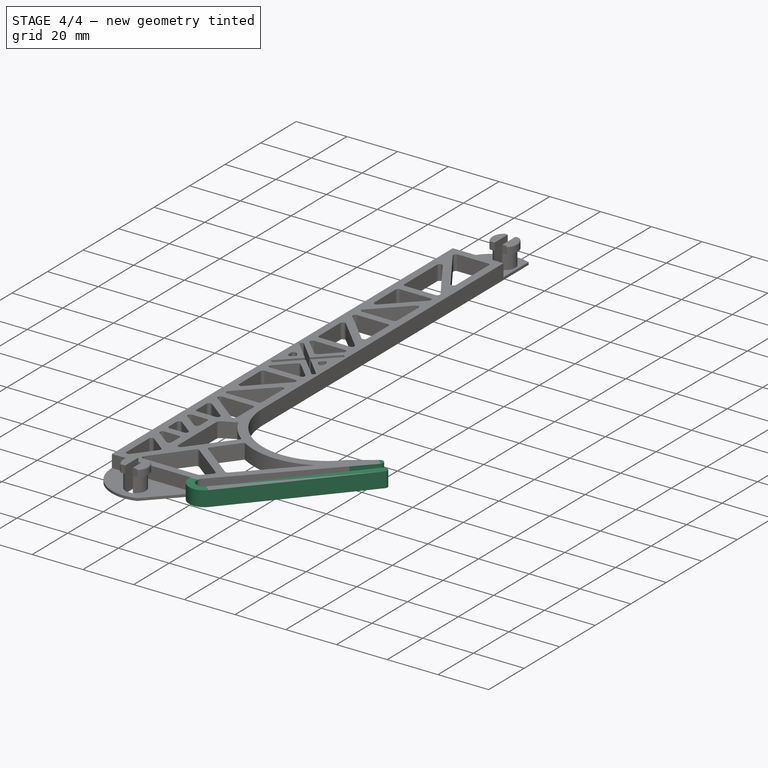
[diagram: stage 4 of 4 — iso view after this stage's code; geometry added in this stage tinted green]
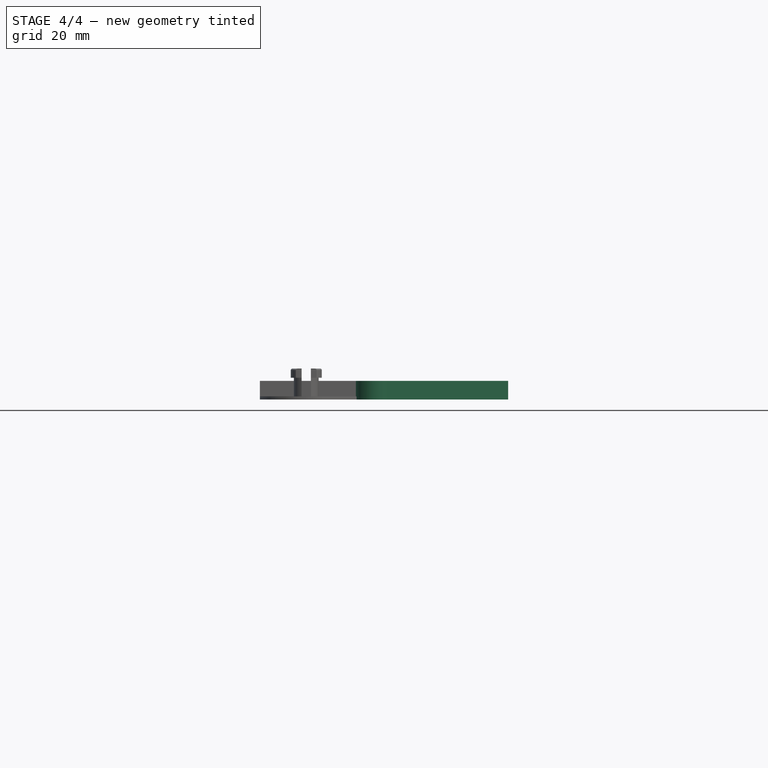
[diagram: stage 4 of 4 — front view after this stage's code; geometry added in this stage tinted green]
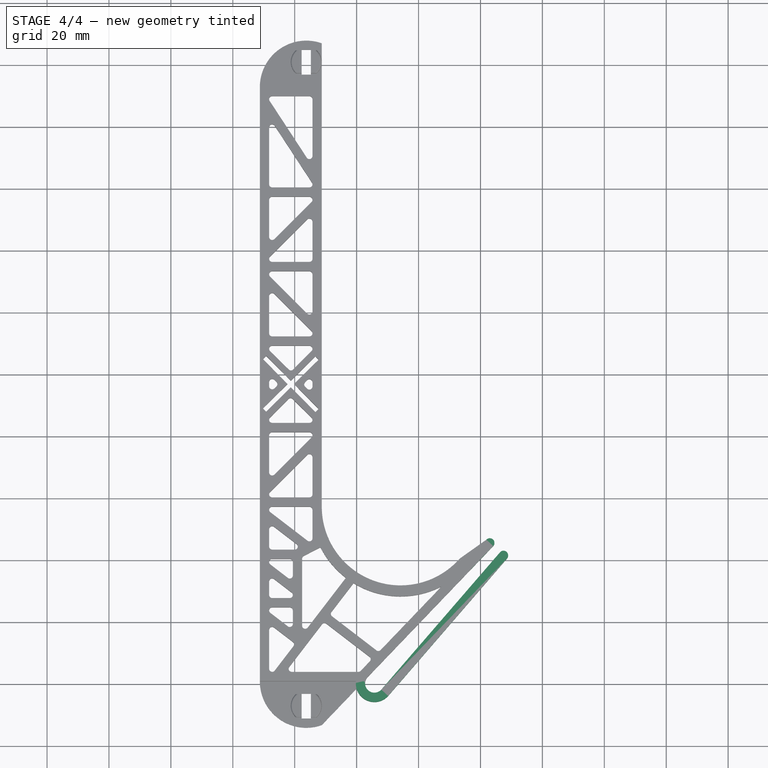
[diagram: stage 4 of 4 — top view after this stage's code; geometry added in this stage tinted green]
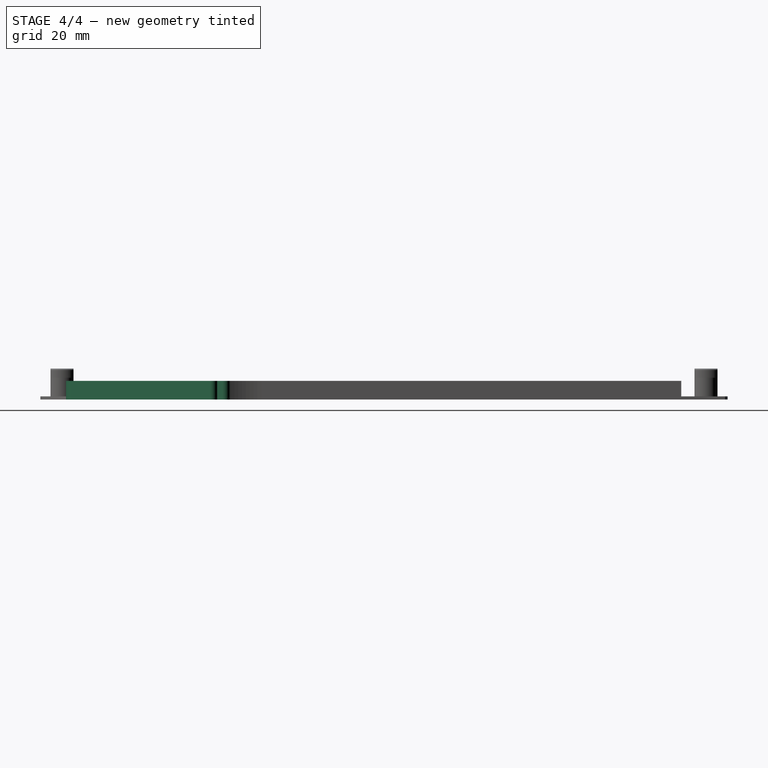
[diagram: stage 4 of 4 — right view after this stage's code; geometry added in this stage tinted green]
FEATURE [PartDesign::Fillet] Fillet003
  Base = -> Fillet002 [Edge565]
  Radius = 0.5
FEATURE [Sketcher::SketchObject] Sketch007
  ExternalGeometry = -> [Fillet003]
  Placement = pos=(0,0,6) rot=(0,0,1;0rad)
  Support = -> Fillet003 [Face175]
  sketch-geometry (6):
    g0: LineSegment StartX=213.285 StartY=-59.4892 StartZ=0 EndX=219.294 EndY=-64.77 EndZ=0
    g1: LineSegment StartX=219.294 StartY=-64.77 StartZ=0 EndX=170.513 EndY=-115.687 EndZ=0
    g2: LineSegment StartX=170.513 StartY=-115.687 StartZ=0 EndX=170.805 EndY=-118.031 EndZ=0
    g3: LineSegment StartX=170.805 StartY=-118.031 StartZ=0 EndX=231.123 EndY=-65.0254 EndZ=0
    g4: LineSegment StartX=231.123 StartY=-65.0254 StartZ=0 EndX=218.799 EndY=-53.2146 EndZ=0
    g5: LineSegment StartX=218.799 StartY=-53.2146 StartZ=0 EndX=213.285 EndY=-59.4892 EndZ=0
  constraints (14):
    c: Coincident(g0,g-3)
    c: Coincident(g0,g-3)
    c: Coincident(g1,g0)
    c: Coincident(g2,g1)
    c: Coincident(g3,g2)
    c: Coincident(g4,g3)
    c: Coincident(g5,g4)
    c: Coincident(g0,g5)
    c: Tangent(g-3,g5)
    c: PointOnObject(g-3,g3)
    c: PointOnObject(g-6,g3)
    c: PointOnObject(g-4,g1)
    c: Tangent(g-4,g2)
    c: Tangent(g-3,g4)
FEATURE [PartDesign::Pocket] Pocket004
  Length = 5
  Sketch = -> Sketch007
  Type = 1
FEATURE [Sketcher::SketchObject] Sketch008
  ExternalGeometry = -> [Pocket004]
  Placement = pos=(0,0,6) rot=(0,0,1;0rad)
  Support = -> Pocket004 [Face171]
  sketch-geometry (13):
    g0: LineSegment StartX=190.176 StartY=-103.835 StartZ=0 EndX=228.555 EndY=-59.4399 EndZ=0
    g1: ArcOfCircle CenterX=185.738 CenterY=-99.7958 CenterZ=0 NormalX=0 NormalY=0 NormalZ=1 Radius=6.00098 StartAngle=2.40318 EndAngle=5.54478
    g2: ArcOfCircle CenterX=185.738 CenterY=-99.7958 CenterZ=0 NormalX=0 NormalY=0 NormalZ=1 Radius=3 StartAngle=2.40318 EndAngle=5.54478
    g3: LineSegment [constr] StartX=181.3 StartY=-95.7565 StartZ=0 EndX=190.176 EndY=-103.835 EndZ=0
    g4: LineSegment [constr] StartX=185.738 StartY=-99.7958 StartZ=0 EndX=225.226 EndY=-56.4102 EndZ=0
    g5: LineSegment StartX=183.519 StartY=-97.7765 StartZ=0 EndX=224.117 EndY=-55.4005 EndZ=0
    g6: LineSegment [constr] StartX=221.898 StartY=-53.3812 StartZ=0 EndX=228.555 EndY=-59.4399 EndZ=0
    g7: LineSegment StartX=187.956 StartY=-101.815 StartZ=0 EndX=226.335 EndY=-57.4199 EndZ=0
    g8: LineSegment StartX=213.285 StartY=-59.4892 StartZ=0 EndX=221.898 EndY=-53.3812 EndZ=0
    g9: LineSegment StartX=181.3 StartY=-95.7565 StartZ=0 EndX=215.066 EndY=-61.0543 EndZ=0
    g10: LineSegment StartX=213.285 StartY=-59.4892 StartZ=0 EndX=215.066 EndY=-61.0543 EndZ=0
    g11: ArcOfCircle CenterX=223.008 CenterY=-54.3909 CenterZ=0 NormalX=0 NormalY=0 NormalZ=1 Radius=1.5 StartAngle=5.54478 EndAngle=8.68637
    g12: ArcOfCircle CenterX=227.445 CenterY=-58.4299 CenterZ=0 NormalX=0 NormalY=0 NormalZ=1 Radius=1.50049 StartAngle=5.54478 EndAngle=8.68637
  constraints (36):
    c: Coincident(g1,g0)
    c: Coincident(g1,g-4)
    c: Coincident(g1,g2)
    c: Coincident(g3,g0)
    c: PointOnObject(g1,g3)
    c: PointOnObject(g2,g-3)
    c: Coincident(g3,g1)
    c: PointOnObject(g2,g3)
    c: PointOnObject(g2,g3)
    c: Radius(g2) = 3
    c: Coincident(g4,g1)
    c: Angle(g3,g4) = 1.5708
    c: PointOnObject(g-3,g5)
    c: Coincident(g2,g5)
    c: PointOnObject(g4,g6)
    c: Coincident(g6,g0)
    c: Coincident(g7,g2)
    c: PointOnObject(g7,g6)
    c: Coincident(g8,g-5)
    c: Coincident(g1,g9)
    c: PointOnObject(g9,g-5)
    c: Coincident(g10,g9)
    c: Coincident(g10,g8)
    c: Angle(g4,g6) = 1.5708
    c: Distance(g7,g4) = 1.5
    c: Distance(g4,g5) = 1.5
    c: Parallel(g0,g7)
    c: Coincident(g12,g0)
    c: Coincident(g12,g7)
    c: Coincident(g11,g8)
    c: Coincident(g5,g11)
    c: Coincident(g6,g8)
    c: PointOnObject(g5,g6)
    c: PointOnObject(g11,g6)
    c: PointOnObject(g12,g6)
    c: Radius(g11) = 1.5
FEATURE [PartDesign::Pad] Pad003
  Length = 6
  Length2 = 100
  Reversed = true
  Sketch = -> Sketch008
  Type = 0
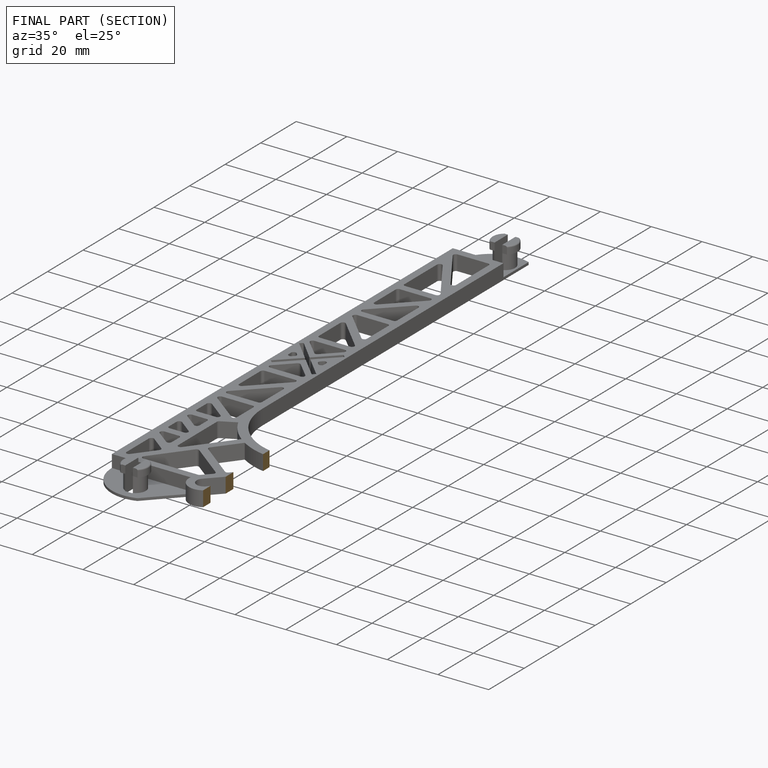
[diagram: finished part — half-section view (interior)]
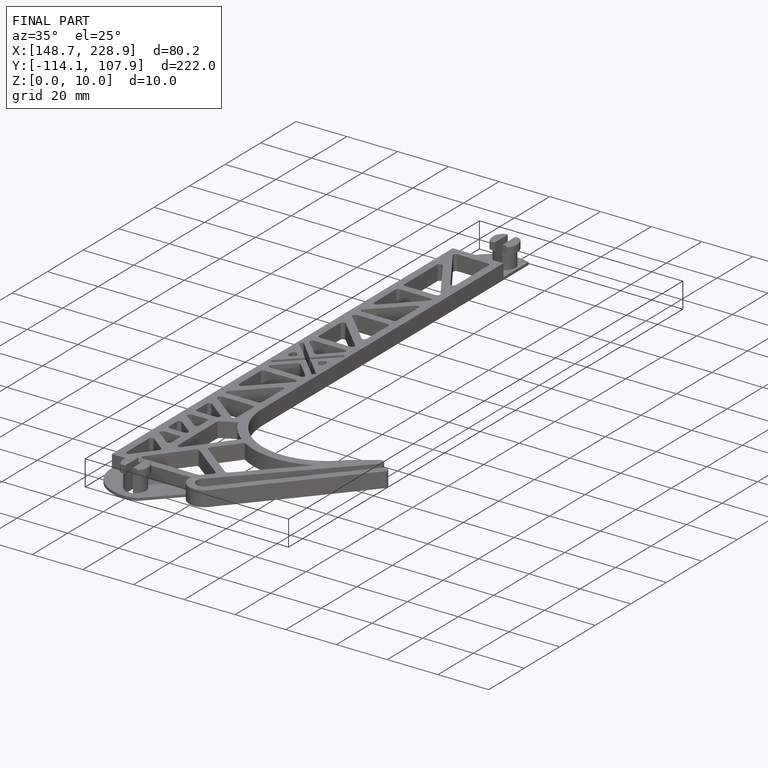
[diagram: finished part — iso view with bounding-box wireframe]
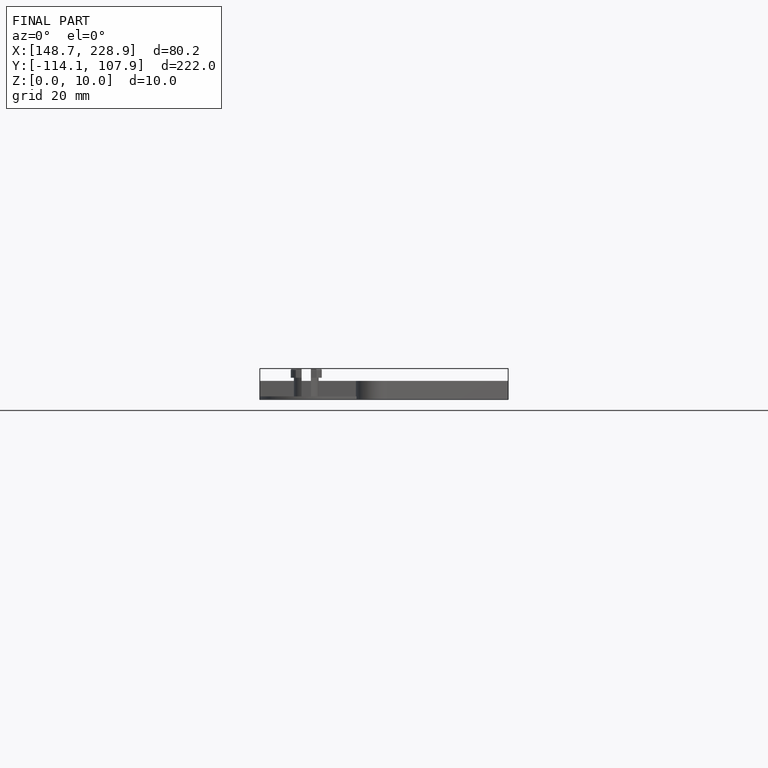
[diagram: finished part — front view with bounding-box wireframe]
